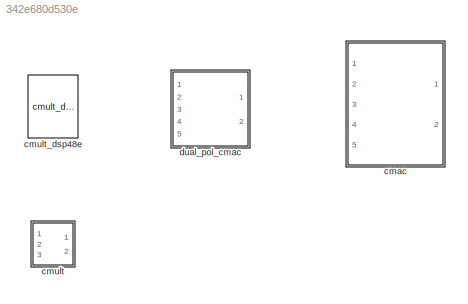
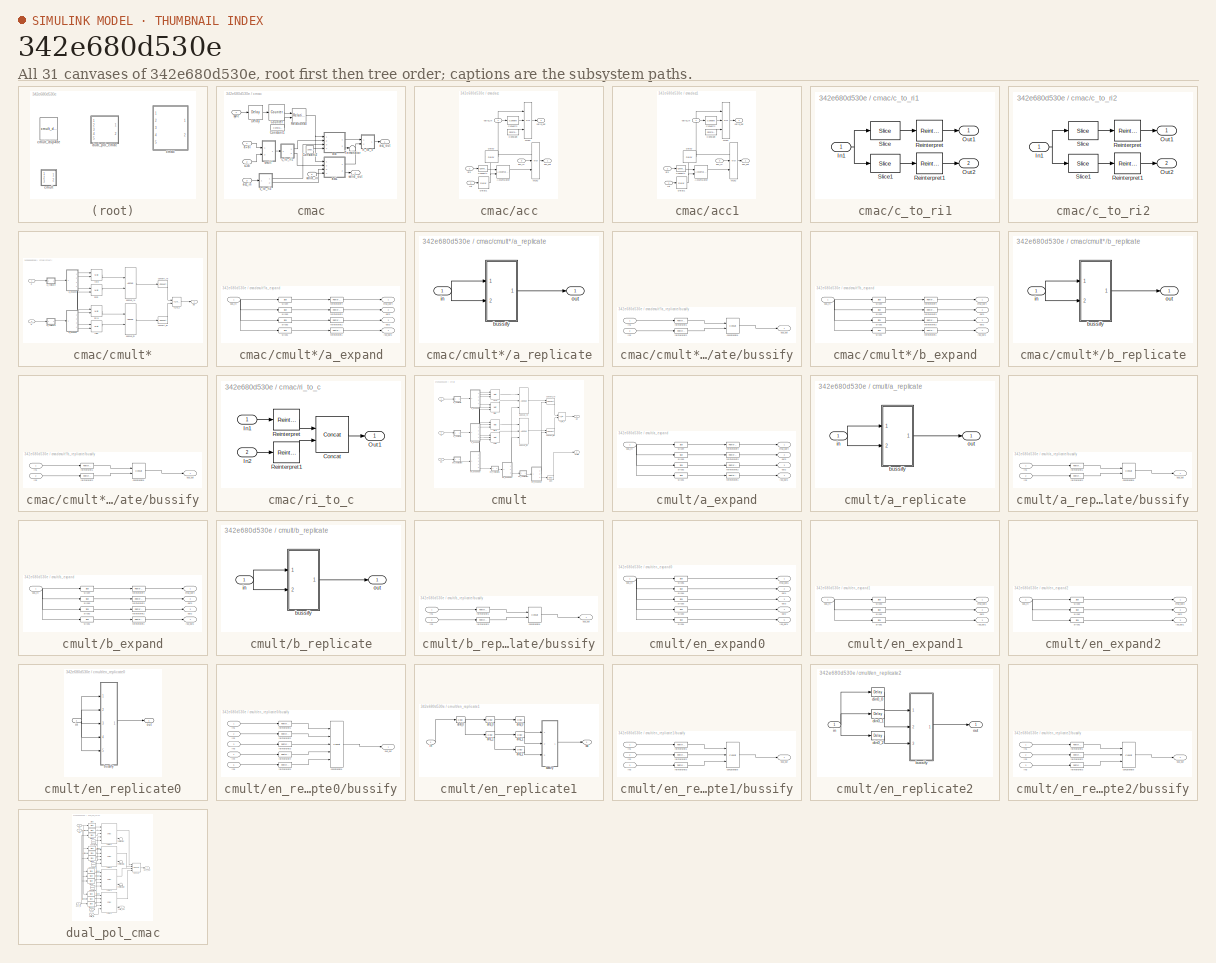
[diagram: thumbnail index - all 31 canvases of the model, root first then tree order]
MODEL slx_342e680d530e
KIND model
BLOCK [SubSystem] cmac
  FunctionWithSeparateData = off
  MaskHideContents = off
  MinAlgLoopOccurrences = off
  Opaque = off
  Ports = [5, 2]
  PropExecContextOutsideSubsystem = off
  RTWSystemCode = Auto
  RequestExecContextInheritance = off
BLOCK [Reference] cmac/Constant1  REF=xbsIndex_r4/Constant
  Ports = [0, 1]
  SourceBlock = xbsIndex_r4/Constant
  SourceType = Xilinx Constant Block Block
  arith_type = Unsigned
  bin_pt = 0
  block_type = constant
  block_version = 9.2.01
  carry = CIN
  const = 0
  dbl_ovrd = off
  dsp48_infoedit = The use of this block for DSP48 instructions is deprecated.  Please use the Opmode block.
  equ = P=C
  exp_width = 8
  explicit_period = off
  frac_width = 24
  gui_display_data_type = Fixed-point
  has_advanced_control = 0
  inp1 = P
  inp2 = PCIN>>17
  n_bits = bit_growth
  opr = +
  opselect = C
  period = 1
  preci_type = Single
  sg_icon_stat = 45,20,0,1,white,blue,0,bf4ddd8b,right,,[ ],[ ]
  sg_mask_display = fprintf('','COMMENT: begin icon graphics');\npatch([0 45 45 0 0 ],[0 0 20 20 0 ],[0.77 0.82 0.91 ]);\nplot([0 45 45 0 0 ],[0 0 20 20 0 ]);\npatch([17.55 20.44 22.44 24.44 26.44 22.44 19.55 17.55 ],[12.22 12.22 14.22 12.22 14.22 14.22 14.22 12.22 ],[1 1 1 ]);\npatch([19.55 22.44 20.44 17.55 19.55 ],[10.22 10.22 12.22 12.22 10.22 ],[0.931 0.946 0.973 ]);\npatch([17.55 20.44 22.44 19.55 17.55 ],[8.22 8.22...<+305ch>
  sggui_pos = -1,-1,-1,-1
BLOCK [Reference] cmac/Constant2  REF=xbsIndex_r4/Constant
  Ports = [0, 1]
  SourceBlock = xbsIndex_r4/Constant
  SourceType = Xilinx Constant Block Block
  arith_type = Unsigned
  bin_pt = 0
  block_type = constant
  block_version = 9.2.01
  carry = CIN
  const = 0
  dbl_ovrd = off
  dsp48_infoedit = The use of this block for DSP48 instructions is deprecated.  Please use the Opmode block.
  equ = P=C
  exp_width = 8
  explicit_period = off
  frac_width = 24
  gui_display_data_type = Fixed-point
  has_advanced_control = 0
  inp1 = P
  inp2 = PCIN>>17
  n_bits = 1
  opr = +
  opselect = C
  period = 1
  preci_type = Single
  sg_icon_stat = 25,24,0,1,white,blue,0,bf4ddd8b,right,,[ ],[ ]
  sg_mask_display = fprintf('','COMMENT: begin icon graphics');\npatch([0 25 25 0 0 ],[0 0 24 24 0 ],[0.77 0.82 0.91 ]);\nplot([0 25 25 0 0 ],[0 0 24 24 0 ]);\npatch([5.325 9.66 12.66 15.66 18.66 12.66 8.325 5.325 ],[15.33 15.33 18.33 15.33 18.33 18.33 18.33 15.33 ],[1 1 1 ]);\npatch([8.325 12.66 9.66 5.325 8.325 ],[12.33 12.33 15.33 15.33 12.33 ],[0.931 0.946 0.973 ]);\npatch([5.325 9.66 12.66 8.325 5.325 ],[9.33 9.33 12...<+301ch>  <repeated x4 — deduplicated; at blocks: Constant2, Constant1, Constant4>
  sggui_pos = 1700,223,378,476
BLOCK [Reference] cmac/Counter  REF=xbsIndex_r4/Counter
  Ports = [1, 1]
  SourceBlock = xbsIndex_r4/Counter
  SourceType = Xilinx Counter Block
  arith_type = Unsigned
  bin_pt = 0
  block_type = counter
  block_version = 9.2.01
  cnt_by_val = 1
  cnt_to = acc_len - 1
  cnt_type = Count Limited
  dbl_ovrd = off
  en = off
  explicit_period = off
  has_advanced_control = 0
  implementation = Fabric
  infoedit = Hardware notes: Free running counters are the least expensive in hardware.  A count limited counter is implemented by combining a counter with a comparator.
  load_pin = off
  n_bits = bit_growth
  operation = Up
  period = 1
  rst = on
  sg_icon_stat = 50,52,1,1,white,blue,0,53dad701,right,,[ ],[ ]
  sg_mask_display = fprintf('','COMMENT: begin icon graphics');\npatch([0 50 50 0 0 ],[0 0 52 52 0 ],[0.77 0.82 0.91 ]);\nplot([0 50 50 0 0 ],[0 0 52 52 0 ]);\npatch([9.425 19.54 26.54 33.54 40.54 26.54 16.425 9.425 ],[33.77 33.77 40.77 33.77 40.77 40.77 40.77 33.77 ],[1 1 1 ]);\npatch([16.425 26.54 19.54 9.425 16.425 ],[26.77 26.77 33.77 33.77 26.77 ],[0.931 0.946 0.973 ]);\npatch([9.425 19.54 26.54 16.425 9.425 ],[19.77...<+395ch>
  sggui_pos = 1700,223,451,768
  start_count = 0
  use_behavioral_HDL = off
  use_rpm = on
  xl_area = [0, 0, 0, 0, 0, 0, 0]
  xl_use_area = off
BLOCK [Reference] cmac/Delay  REF=xbsIndex_r4/Delay
  Ports = [1, 1]
  SourceBlock = xbsIndex_r4/Delay
  SourceType = Xilinx Delay Block
  block_type = delay
  block_version = 9.2.01
  dbl_ovrd = off
  en = off
  has_advanced_control = 0
  infoedit = Hardware notes: A delay line is a chain, each link of which is an SRL16 followed by a flip-flop.
  infoeditControl = Selection of Reset will increase slice count due to use of real FFs and instead of SRLs
  latency = add_latency + mult_latency - 1
  reg_retiming = on
  rst = off
  sg_icon_stat = 45,46,1,1,white,blue,0,07b98262,right,,[ ],[ ]
  sg_mask_display = fprintf('','COMMENT: begin icon graphics');\npatch([0 45 45 0 0 ],[0 0 46 46 0 ],[0.77 0.82 0.91 ]);\nplot([0 45 45 0 0 ],[0 0 46 46 0 ]);\npatch([8.65 17.32 23.32 29.32 35.32 23.32 14.65 8.65 ],[29.66 29.66 35.66 29.66 35.66 35.66 35.66 29.66 ],[1 1 1 ]);\npatch([14.65 23.32 17.32 8.65 14.65 ],[23.66 23.66 29.66 29.66 23.66 ],[0.931 0.946 0.973 ]);\npatch([8.65 17.32 23.32 14.65 8.65 ],[17.66 17.66 23...<+314ch>
  sggui_pos = 1896,900,451,404
  xl_area = [0, 0, 0, 0, 0, 0, 0]
  xl_use_area = off
BLOCK [Reference] cmac/Relational  REF=xbsIndex_r4/Relational
  Ports = [2, 1]
  SourceBlock = xbsIndex_r4/Relational
  SourceType = Xilinx Arithmetic Relational Operator Block
  block_type = relational
  block_version = 9.2.01
  dbl_ovrd = off
  en = off
  has_advanced_control = 0
  latency = 1
  mode = a=b
  sg_icon_stat = 45,44,2,1,white,blue,0,3618233f,right,,[ ],[ ]
  sg_mask_display = fprintf('','COMMENT: begin icon graphics');\npatch([0 45 45 0 0 ],[0 0 44 44 0 ],[0.77 0.82 0.91 ]);\nplot([0 45 45 0 0 ],[0 0 44 44 0 ]);\npatch([8.65 17.32 23.32 29.32 35.32 23.32 14.65 8.65 ],[28.66 28.66 34.66 28.66 34.66 34.66 34.66 28.66 ],[1 1 1 ]);\npatch([14.65 23.32 17.32 8.65 14.65 ],[22.66 22.66 28.66 28.66 22.66 ],[0.931 0.946 0.973 ]);\npatch([8.65 17.32 23.32 14.65 8.65 ],[16.66 16.66 22...<+499ch>
  sggui_pos = 1730,253,451,210
  xl_area = [0, 0, 0, 0, 0, 0, 0]
  xl_use_area = off
BLOCK [Terminator] cmac/Terminator
BLOCK [Inport] cmac/a+bi
  IconDisplay = Port number
BLOCK [SubSystem] cmac/acc
  FunctionWithSeparateData = off
  MaskHideContents = off
  MinAlgLoopOccurrences = off
  Opaque = off
  Ports = [4, 2]
  PropExecContextOutsideSubsystem = off
  RTWSystemCode = Auto
  RequestExecContextInheritance = off
BLOCK [Reference] cmac/acc/Accumulator  REF=xbsIndex_r4/Accumulator
  Ports = [2, 1]
  SourceBlock = xbsIndex_r4/Accumulator
  SourceType = Xilinx Accumulator Block
  block_type = accum
  block_version = 9.2.01
  dbl_ovrd = off
  en = off
  has_advanced_control = 0
  hasbypass = on
  implementation = Fabric
  infoedit = Adder or subtractor-based accumulator.   Output type and binary point position match the input.<P><P>Hardware notes: When "Reinitialize with input 'b' on reset" is selected, the accumulator is forced to run at the system rate even if the input 'b' is running at a slower rate.
  infoeditControl = reset for floating point data type must be asserted for a minimum of 2 cycles
  latency = 0
  lsb = -100
  msb = 100
  msb_inp = 100
  n_bits = n_bits_out
  operation = Add
  overflow = Wrap
  rst = on
  scale = 1
  sg_icon_stat = 50,49,2,1,white,blue,0,6949434e,right,,[ ],[ ]
  sg_mask_display = fprintf('','COMMENT: begin icon graphics');\npatch([0 50 50 0 0 ],[0 0 49 49 0 ],[0.77 0.82 0.91 ]);\nplot([0 50 50 0 0 ],[0 0 49 49 0 ]);\npatch([9.425 19.54 26.54 33.54 40.54 26.54 16.425 9.425 ],[31.77 31.77 38.77 31.77 38.77 38.77 38.77 31.77 ],[1 1 1 ]);\npatch([16.425 26.54 19.54 9.425 16.425 ],[24.77 24.77 31.77 31.77 24.77 ],[0.931 0.946 0.973 ]);\npatch([9.425 19.54 26.54 16.425 9.425 ],[17.77...<+427ch>
  sggui_pos = 1700,223,451,702
  use_behavioral_HDL = on
  xl_area = [0, 0, 0, 0, 0, 0, 0]
  xl_use_area = off
BLOCK [Reference] cmac/acc/Constant  REF=xbsIndex_r4/Constant
  Ports = [0, 1]
  SourceBlock = xbsIndex_r4/Constant
  SourceType = Xilinx Constant Block Block
  arith_type = Boolean
  bin_pt = 0
  block_type = constant
  block_version = 9.2.01
  carry = CIN
  const = 1
  dbl_ovrd = off
  dsp48_infoedit = The use of this block for DSP48 instructions is deprecated.  Please use the Opmode block.
  equ = P=C
  exp_width = 8
  explicit_period = on
  frac_width = 24
  gui_display_data_type = Fixed-point
  has_advanced_control = 0
  inp1 = P
  inp2 = PCIN>>17
  n_bits = 1
  opr = +
  opselect = C
  period = 1
  preci_type = Single
  sg_icon_stat = 45,22,0,1,white,blue,0,1c72b5be,right,,[ ],[ ]
  sg_mask_display = fprintf('','COMMENT: begin icon graphics');\npatch([0 45 45 0 0 ],[0 0 22 22 0 ],[0.77 0.82 0.91 ]);\nplot([0 45 45 0 0 ],[0 0 22 22 0 ]);\npatch([15.325 19.66 22.66 25.66 28.66 22.66 18.325 15.325 ],[14.33 14.33 17.33 14.33 17.33 17.33 17.33 14.33 ],[1 1 1 ]);\npatch([18.325 22.66 19.66 15.325 18.325 ],[11.33 11.33 14.33 14.33 11.33 ],[0.931 0.946 0.973 ]);\npatch([15.325 19.66 22.66 18.325 15.325 ],[...<+317ch>
  sggui_pos = 1700,223,378,476
BLOCK [Reference] cmac/acc/Convert1  REF=xbsIndex_r4/Convert
  Ports = [1, 1]
  SourceBlock = xbsIndex_r4/Convert
  SourceType = Xilinx Type Converter Block
  arith_type = Signed  (2's comp)
  bin_pt = bin_pt_out
  block_type = convert
  block_version = 9.2.01
  dbl_ovrd = off
  en = off
  exp_bits = 8
  float_type = Single
  fraction_bits = 24
  gui_display_data_type = Fixed-point
  has_advanced_control = 0
  infoedit = Hardware notes: rounding and saturating require hardware resources; truncating and wrapping do not.
  latency = 0
  n_bits = n_bits_out
  overflow = Wrap
  pipeline = off
  quantization = Truncate
  sg_icon_stat = 35,24,1,1,white,blue,0,edca21da,right,,[ ],[ ]
  sg_mask_display = fprintf('','COMMENT: begin icon graphics');\npatch([0 35 35 0 0 ],[0 0 24 24 0 ],[0.77 0.82 0.91 ]);\nplot([0 35 35 0 0 ],[0 0 24 24 0 ]);\npatch([10.325 14.66 17.66 20.66 23.66 17.66 13.325 10.325 ],[15.33 15.33 18.33 15.33 18.33 18.33 18.33 15.33 ],[1 1 1 ]);\npatch([13.325 17.66 14.66 10.325 13.325 ],[12.33 12.33 15.33 15.33 12.33 ],[0.931 0.946 0.973 ]);\npatch([10.325 14.66 17.66 13.325 10.325 ],[...<+321ch>
  sggui_pos = 1700,223,568,656
  xl_area = [0, 0, 0, 0, 0, 0, 0]
  xl_use_area = off
BLOCK [Reference] cmac/acc/Convert2  REF=xbsIndex_r4/Convert
  Ports = [1, 1]
  SourceBlock = xbsIndex_r4/Convert
  SourceType = Xilinx Type Converter Block
  arith_type = Boolean
  bin_pt = 6
  block_type = convert
  block_version = 9.2.01
  dbl_ovrd = off
  en = off
  exp_bits = 8
  float_type = Single
  fraction_bits = 24
  gui_display_data_type = Fixed-point
  has_advanced_control = 0
  infoedit = Hardware notes: rounding and saturating require hardware resources; truncating and wrapping do not.
  latency = 0
  n_bits = 8
  overflow = Wrap
  pipeline = off
  quantization = Truncate
  sg_icon_stat = 45,30,1,1,white,blue,0,edca21da,right,,[ ],[ ]
  sg_mask_display = fprintf('','COMMENT: begin icon graphics');\npatch([0 45 45 0 0 ],[0 0 30 30 0 ],[0.77 0.82 0.91 ]);\nplot([0 45 45 0 0 ],[0 0 30 30 0 ]);\npatch([13.1 18.88 22.88 26.88 30.88 22.88 17.1 13.1 ],[19.44 19.44 23.44 19.44 23.44 23.44 23.44 19.44 ],[1 1 1 ]);\npatch([17.1 22.88 18.88 13.1 17.1 ],[15.44 15.44 19.44 19.44 15.44 ],[0.931 0.946 0.973 ]);\npatch([13.1 18.88 22.88 17.1 13.1 ],[11.44 11.44 15.44 ...<+303ch>
  sggui_pos = 2778,242,568,656
  xl_area = [0, 0, 0, 0, 0, 0, 0]
  xl_use_area = off
BLOCK [Reference] cmac/acc/Delay  REF=xbsIndex_r4/Delay
  Ports = [1, 1]
  SourceBlock = xbsIndex_r4/Delay
  SourceType = Xilinx Delay Block
  block_type = delay
  block_version = 9.2.01
  dbl_ovrd = off
  en = off
  has_advanced_control = 0
  infoedit = Hardware notes: A delay line is a chain, each link of which is an SRL16 followed by a flip-flop.
  infoeditControl = Selection of Reset will increase slice count due to use of real FFs and instead of SRLs
  latency = 0
  reg_retiming = off
  rst = off
  sg_icon_stat = 50,46,1,1,white,blue,0,24450e6f,right,,[ ],[ ]
  sg_mask_display = fprintf('','COMMENT: begin icon graphics');\npatch([0 50 50 0 0 ],[0 0 46 46 0 ],[0.77 0.82 0.91 ]);\nplot([0 50 50 0 0 ],[0 0 46 46 0 ]);\npatch([11.65 20.32 26.32 32.32 38.32 26.32 17.65 11.65 ],[29.66 29.66 35.66 29.66 35.66 35.66 35.66 29.66 ],[1 1 1 ]);\npatch([17.65 26.32 20.32 11.65 17.65 ],[23.66 23.66 29.66 29.66 23.66 ],[0.931 0.946 0.973 ]);\npatch([11.65 20.32 26.32 17.65 11.65 ],[17.66 17....<+320ch>
  sggui_pos = 1700,223,451,404
  xl_area = [0, 0, 0, 0, 0, 0, 0]
  xl_use_area = off
BLOCK [Reference] cmac/acc/Delay1  REF=xbsIndex_r4/Delay
  Ports = [1, 1]
  SourceBlock = xbsIndex_r4/Delay
  SourceType = Xilinx Delay Block
  block_type = delay
  block_version = 9.2.01
  dbl_ovrd = off
  en = off
  has_advanced_control = 0
  infoedit = Hardware notes: A delay line is a chain, each link of which is an SRL16 followed by a flip-flop.
  infoeditControl = Selection of Reset will increase slice count due to use of real FFs and instead of SRLs
  latency = 0
  reg_retiming = off
  rst = off
  sg_icon_stat = 40,46,1,1,white,blue,0,24450e6f,right,,[ ],[ ]
  sg_mask_display = fprintf('','COMMENT: begin icon graphics');\npatch([0 40 40 0 0 ],[0 0 46 46 0 ],[0.77 0.82 0.91 ]);\nplot([0 40 40 0 0 ],[0 0 46 46 0 ]);\npatch([8.875 16.1 21.1 26.1 31.1 21.1 13.875 8.875 ],[28.55 28.55 33.55 28.55 33.55 33.55 33.55 28.55 ],[1 1 1 ]);\npatch([13.875 21.1 16.1 8.875 13.875 ],[23.55 23.55 28.55 28.55 23.55 ],[0.931 0.946 0.973 ]);\npatch([8.875 16.1 21.1 13.875 8.875 ],[18.55 18.55 23...<+313ch>
  sggui_pos = -1,-1,-1,-1
  xl_area = [0, 0, 0, 0, 0, 0, 0]
  xl_use_area = off
BLOCK [Reference] cmac/acc/Mux2  REF=xbsIndex_r4/Mux
  Ports = [3, 1]
  SourceBlock = xbsIndex_r4/Mux
  SourceType = Xilinx Bus Multiplexer Block
  arith_type = Signed  (2's comp)
  bin_pt = 0
  block_type = mux
  block_version = 9.2.01
  dbl_ovrd = off
  en = off
  has_advanced_control = 0
  inputs = 2
  latency = 2
  n_bits = 0
  overflow = Wrap
  precision = Full
  quantization = Round  (unbiased: +/- Inf)
  sg_icon_stat = 30,140,3,1,white,blue,3,7e8e053c,right,,[ ],[ ]
  sg_mask_display = fprintf('','COMMENT: begin icon graphics');\npatch([0 30 30 0 0 ],[0 20 120 140 0 ],[0.77 0.82 0.91 ]);\nplot([0 30 30 0 0 ],[0 20 120 140 0 ]);\npatch([6.1 11.88 15.88 19.88 23.88 15.88 10.1 6.1 ],[74.44 74.44 78.44 74.44 78.44 78.44 78.44 74.44 ],[1 1 1 ]);\npatch([10.1 15.88 11.88 6.1 10.1 ],[70.44 70.44 74.44 74.44 70.44 ],[0.931 0.946 0.973 ]);\npatch([6.1 11.88 15.88 10.1 6.1 ],[66.44 66.44 70.44...<+444ch>  <repeated x4 — deduplicated; at blocks: Mux2, Mux3>
  sggui_pos = -1,-1,-1,-1
  xl_area = [0, 0, 0, 0, 0, 0, 0]
  xl_use_area = off
BLOCK [Reference] cmac/acc/Mux3  REF=xbsIndex_r4/Mux
  Ports = [3, 1]
  SourceBlock = xbsIndex_r4/Mux
  SourceType = Xilinx Bus Multiplexer Block
  arith_type = Signed  (2's comp)
  bin_pt = 0
  block_type = mux
  block_version = 9.2.01
  dbl_ovrd = off
  en = off
  has_advanced_control = 0
  inputs = 2
  latency = 2
  n_bits = 0
  overflow = Wrap
  precision = Full
  quantization = Truncate
  sg_icon_stat = 30,140,3,1,white,blue,3,7e8e053c,right,,[ ],[ ]
  sggui_pos = -1,-1,-1,-1
  xl_area = [0, 0, 0, 0, 0, 0, 0]
  xl_use_area = off
BLOCK [Inport] cmac/acc/acc_in
  IconDisplay = Port number
  Port = 3
BLOCK [Outport] cmac/acc/acc_out
  IconDisplay = Port number
BLOCK [Inport] cmac/acc/din
  IconDisplay = Port number
  Port = 2
BLOCK [Inport] cmac/acc/rst
  IconDisplay = Port number
BLOCK [Inport] cmac/acc/valid_in
  IconDisplay = Port number
  Port = 4
BLOCK [Outport] cmac/acc/valid_out
  IconDisplay = Port number
  Port = 2
BLOCK [SubSystem] cmac/acc1
  FunctionWithSeparateData = off
  MaskHideContents = off
  MinAlgLoopOccurrences = off
  Opaque = off
  Ports = [4, 2]
  PropExecContextOutsideSubsystem = off
  RTWSystemCode = Auto
  RequestExecContextInheritance = off
BLOCK [Reference] cmac/acc1/Accumulator  REF=xbsIndex_r4/Accumulator
  Ports = [2, 1]
  SourceBlock = xbsIndex_r4/Accumulator
  SourceType = Xilinx Accumulator Block
  block_type = accum
  block_version = 9.2.01
  dbl_ovrd = off
  en = off
  has_advanced_control = 0
  hasbypass = on
  implementation = Fabric
  infoedit = Adder or subtractor-based accumulator.   Output type and binary point position match the input.<P><P>Hardware notes: When "Reinitialize with input 'b' on reset" is selected, the accumulator is forced to run at the system rate even if the input 'b' is running at a slower rate.
  infoeditControl = reset for floating point data type must be asserted for a minimum of 2 cycles
  latency = 0
  lsb = -100
  msb = 100
  msb_inp = 100
  n_bits = n_bits_out
  operation = Add
  overflow = Wrap
  rst = on
  scale = 1
  sg_icon_stat = 50,49,2,1,white,blue,0,6949434e,right,,[ ],[ ]
  sg_mask_display = fprintf('','COMMENT: begin icon graphics');\npatch([0 50 50 0 0 ],[0 0 49 49 0 ],[0.77 0.82 0.91 ]);\nplot([0 50 50 0 0 ],[0 0 49 49 0 ]);\npatch([9.425 19.54 26.54 33.54 40.54 26.54 16.425 9.425 ],[31.77 31.77 38.77 31.77 38.77 38.77 38.77 31.77 ],[1 1 1 ]);\npatch([16.425 26.54 19.54 9.425 16.425 ],[24.77 24.77 31.77 31.77 24.77 ],[0.931 0.946 0.973 ]);\npatch([9.425 19.54 26.54 16.425 9.425 ],[17.77...<+427ch>
  sggui_pos = 1700,223,451,702
  use_behavioral_HDL = on
  xl_area = [0, 0, 0, 0, 0, 0, 0]
  xl_use_area = off
BLOCK [Reference] cmac/acc1/Constant  REF=xbsIndex_r4/Constant
  Ports = [0, 1]
  SourceBlock = xbsIndex_r4/Constant
  SourceType = Xilinx Constant Block Block
  arith_type = Boolean
  bin_pt = 0
  block_type = constant
  block_version = 9.2.01
  carry = CIN
  const = 1
  dbl_ovrd = off
  dsp48_infoedit = The use of this block for DSP48 instructions is deprecated.  Please use the Opmode block.
  equ = P=C
  exp_width = 8
  explicit_period = on
  frac_width = 24
  gui_display_data_type = Fixed-point
  has_advanced_control = 0
  inp1 = P
  inp2 = PCIN>>17
  n_bits = 1
  opr = +
  opselect = C
  period = 1
  preci_type = Single
  sg_icon_stat = 45,22,0,1,white,blue,0,1c72b5be,right,,[ ],[ ]
  sg_mask_display = fprintf('','COMMENT: begin icon graphics');\npatch([0 45 45 0 0 ],[0 0 22 22 0 ],[0.77 0.82 0.91 ]);\nplot([0 45 45 0 0 ],[0 0 22 22 0 ]);\npatch([15.325 19.66 22.66 25.66 28.66 22.66 18.325 15.325 ],[14.33 14.33 17.33 14.33 17.33 17.33 17.33 14.33 ],[1 1 1 ]);\npatch([18.325 22.66 19.66 15.325 18.325 ],[11.33 11.33 14.33 14.33 11.33 ],[0.931 0.946 0.973 ]);\npatch([15.325 19.66 22.66 18.325 15.325 ],[...<+317ch>
  sggui_pos = -1,-1,-1,-1
BLOCK [Reference] cmac/acc1/Convert1  REF=xbsIndex_r4/Convert
  Ports = [1, 1]
  SourceBlock = xbsIndex_r4/Convert
  SourceType = Xilinx Type Converter Block
  arith_type = Signed  (2's comp)
  bin_pt = bin_pt_out
  block_type = convert
  block_version = 9.2.01
  dbl_ovrd = off
  en = off
  exp_bits = 8
  float_type = Single
  fraction_bits = 24
  gui_display_data_type = Fixed-point
  has_advanced_control = 0
  infoedit = Hardware notes: rounding and saturating require hardware resources; truncating and wrapping do not.
  latency = 0
  n_bits = n_bits_out
  overflow = Wrap
  pipeline = off
  quantization = Truncate
  sg_icon_stat = 35,24,1,1,white,blue,0,edca21da,right,,[ ],[ ]
  sg_mask_display = fprintf('','COMMENT: begin icon graphics');\npatch([0 35 35 0 0 ],[0 0 24 24 0 ],[0.77 0.82 0.91 ]);\nplot([0 35 35 0 0 ],[0 0 24 24 0 ]);\npatch([10.325 14.66 17.66 20.66 23.66 17.66 13.325 10.325 ],[15.33 15.33 18.33 15.33 18.33 18.33 18.33 15.33 ],[1 1 1 ]);\npatch([13.325 17.66 14.66 10.325 13.325 ],[12.33 12.33 15.33 15.33 12.33 ],[0.931 0.946 0.973 ]);\npatch([10.325 14.66 17.66 13.325 10.325 ],[...<+321ch>
  sggui_pos = 1700,223,568,656
  xl_area = [0, 0, 0, 0, 0, 0, 0]
  xl_use_area = off
BLOCK [Reference] cmac/acc1/Convert2  REF=xbsIndex_r4/Convert
  Ports = [1, 1]
  SourceBlock = xbsIndex_r4/Convert
  SourceType = Xilinx Type Converter Block
  arith_type = Boolean
  bin_pt = 6
  block_type = convert
  block_version = 9.2.01
  dbl_ovrd = off
  en = off
  exp_bits = 8
  float_type = Single
  fraction_bits = 24
  gui_display_data_type = Fixed-point
  has_advanced_control = 0
  infoedit = Hardware notes: rounding and saturating require hardware resources; truncating and wrapping do not.
  latency = 0
  n_bits = 8
  overflow = Wrap
  pipeline = off
  quantization = Truncate
  sg_icon_stat = 45,30,1,1,white,blue,0,edca21da,right,,[ ],[ ]
  sg_mask_display = fprintf('','COMMENT: begin icon graphics');\npatch([0 45 45 0 0 ],[0 0 30 30 0 ],[0.77 0.82 0.91 ]);\nplot([0 45 45 0 0 ],[0 0 30 30 0 ]);\npatch([13.1 18.88 22.88 26.88 30.88 22.88 17.1 13.1 ],[19.44 19.44 23.44 19.44 23.44 23.44 23.44 19.44 ],[1 1 1 ]);\npatch([17.1 22.88 18.88 13.1 17.1 ],[15.44 15.44 19.44 19.44 15.44 ],[0.931 0.946 0.973 ]);\npatch([13.1 18.88 22.88 17.1 13.1 ],[11.44 11.44 15.44 ...<+303ch>
  sggui_pos = -1,-1,-1,-1
  xl_area = [0, 0, 0, 0, 0, 0, 0]
  xl_use_area = off
BLOCK [Reference] cmac/acc1/Delay  REF=xbsIndex_r4/Delay
  Ports = [1, 1]
  SourceBlock = xbsIndex_r4/Delay
  SourceType = Xilinx Delay Block
  block_type = delay
  block_version = 9.2.01
  dbl_ovrd = off
  en = off
  has_advanced_control = 0
  infoedit = Hardware notes: A delay line is a chain, each link of which is an SRL16 followed by a flip-flop.
  infoeditControl = Selection of Reset will increase slice count due to use of real FFs and instead of SRLs
  latency = 0
  reg_retiming = off
  rst = off
  sg_icon_stat = 50,46,1,1,white,blue,0,24450e6f,right,,[ ],[ ]
  sg_mask_display = fprintf('','COMMENT: begin icon graphics');\npatch([0 50 50 0 0 ],[0 0 46 46 0 ],[0.77 0.82 0.91 ]);\nplot([0 50 50 0 0 ],[0 0 46 46 0 ]);\npatch([11.65 20.32 26.32 32.32 38.32 26.32 17.65 11.65 ],[29.66 29.66 35.66 29.66 35.66 35.66 35.66 29.66 ],[1 1 1 ]);\npatch([17.65 26.32 20.32 11.65 17.65 ],[23.66 23.66 29.66 29.66 23.66 ],[0.931 0.946 0.973 ]);\npatch([11.65 20.32 26.32 17.65 11.65 ],[17.66 17....<+320ch>
  sggui_pos = -1,-1,-1,-1
  xl_area = [0, 0, 0, 0, 0, 0, 0]
  xl_use_area = off
BLOCK [Reference] cmac/acc1/Delay1  REF=xbsIndex_r4/Delay
  Ports = [1, 1]
  SourceBlock = xbsIndex_r4/Delay
  SourceType = Xilinx Delay Block
  block_type = delay
  block_version = 9.2.01
  dbl_ovrd = off
  en = off
  has_advanced_control = 0
  infoedit = Hardware notes: A delay line is a chain, each link of which is an SRL16 followed by a flip-flop.
  infoeditControl = Selection of Reset will increase slice count due to use of real FFs and instead of SRLs
  latency = 0
  reg_retiming = off
  rst = off
  sg_icon_stat = 40,46,1,1,white,blue,0,24450e6f,right,,[ ],[ ]
  sg_mask_display = fprintf('','COMMENT: begin icon graphics');\npatch([0 40 40 0 0 ],[0 0 46 46 0 ],[0.77 0.82 0.91 ]);\nplot([0 40 40 0 0 ],[0 0 46 46 0 ]);\npatch([8.875 16.1 21.1 26.1 31.1 21.1 13.875 8.875 ],[28.55 28.55 33.55 28.55 33.55 33.55 33.55 28.55 ],[1 1 1 ]);\npatch([13.875 21.1 16.1 8.875 13.875 ],[23.55 23.55 28.55 28.55 23.55 ],[0.931 0.946 0.973 ]);\npatch([8.875 16.1 21.1 13.875 8.875 ],[18.55 18.55 23...<+313ch>
  sggui_pos = -1,-1,-1,-1
  xl_area = [0, 0, 0, 0, 0, 0, 0]
  xl_use_area = off
BLOCK [Reference] cmac/acc1/Mux2  REF=xbsIndex_r4/Mux
  Ports = [3, 1]
  SourceBlock = xbsIndex_r4/Mux
  SourceType = Xilinx Bus Multiplexer Block
  arith_type = Signed  (2's comp)
  bin_pt = 0
  block_type = mux
  block_version = 9.2.01
  dbl_ovrd = off
  en = off
  has_advanced_control = 0
  inputs = 2
  latency = 2
  n_bits = 0
  overflow = Wrap
  precision = Full
  quantization = Round  (unbiased: +/- Inf)
  sg_icon_stat = 30,140,3,1,white,blue,3,7e8e053c,right,,[ ],[ ]
  sggui_pos = 1700,223,451,368
  xl_area = [0, 0, 0, 0, 0, 0, 0]
  xl_use_area = off
BLOCK [Reference] cmac/acc1/Mux3  REF=xbsIndex_r4/Mux
  Ports = [3, 1]
  SourceBlock = xbsIndex_r4/Mux
  SourceType = Xilinx Bus Multiplexer Block
  arith_type = Signed  (2's comp)
  bin_pt = 0
  block_type = mux
  block_version = 9.2.01
  dbl_ovrd = off
  en = off
  has_advanced_control = 0
  inputs = 2
  latency = 2
  n_bits = 0
  overflow = Wrap
  precision = Full
  quantization = Truncate
  sg_icon_stat = 30,140,3,1,white,blue,3,7e8e053c,right,,[ ],[ ]
  sggui_pos = -1,-1,-1,-1
  xl_area = [0, 0, 0, 0, 0, 0, 0]
  xl_use_area = off
BLOCK [Inport] cmac/acc1/acc_in
  IconDisplay = Port number
  Port = 3
BLOCK [Outport] cmac/acc1/acc_out
  IconDisplay = Port number
BLOCK [Inport] cmac/acc1/din
  IconDisplay = Port number
  Port = 2
BLOCK [Inport] cmac/acc1/rst
  IconDisplay = Port number
BLOCK [Inport] cmac/acc1/valid_in
  IconDisplay = Port number
  Port = 4
BLOCK [Outport] cmac/acc1/valid_out
  IconDisplay = Port number
  Port = 2
BLOCK [Inport] cmac/acc_in
  IconDisplay = Port number
  Port = 3
BLOCK [Outport] cmac/acc_out
  IconDisplay = Port number
BLOCK [Inport] cmac/c+di
  IconDisplay = Port number
  Port = 2
BLOCK [SubSystem] cmac/c_to_ri1
  FunctionWithSeparateData = off
  MaskHideContents = off
  MinAlgLoopOccurrences = off
  Opaque = off
  Ports = [1, 2]
  PropExecContextOutsideSubsystem = off
  RTWSystemCode = Auto
  RequestExecContextInheritance = off
BLOCK [Inport] cmac/c_to_ri1/In1
  IconDisplay = Port number
BLOCK [Outport] cmac/c_to_ri1/Out1
  IconDisplay = Port number
BLOCK [Outport] cmac/c_to_ri1/Out2
  IconDisplay = Port number
  Port = 2
BLOCK [Reference] cmac/c_to_ri1/Reinterpret  REF=xbsIndex_r4/Reinterpret
  Ports = [1, 1]
  SourceBlock = xbsIndex_r4/Reinterpret
  SourceType = Xilinx Type Reinterpreter Block
  arith_type = Signed  (2's comp)
  bin_pt = bin_pt_out
  block_type = reinterpret
  block_version = 9.2.01
  force_arith_type = on
  force_bin_pt = on
  has_advanced_control = 0
  infoedit = Changes signal type without altering the binary representation.   You can change the signal between signed and unsigned, and relocate the binary point.<br><br>Hardware notes: In hardware this block costs nothing.<br><br>Example:  Suppose the input is 6 bits wide, signed, with 2 fractional bits, and the output is forced to unsigned with 0 fractional bits.  Then an input of -2.0 (1110.00 in binary 2...<+58ch>  <repeated x23 — deduplicated; at blocks: Reinterpret, Reinterpret1, reinterpret1, reinterpret2, reinterpret3, reinterpret4, reinterpret5>
  sg_icon_stat = 40,32,1,1,white,blue,0,6b04d0b0,right,,[ ],[ ]
  sg_mask_display = fprintf('','COMMENT: begin icon graphics');\npatch([0 40 40 0 0 ],[0 0 32 32 0 ],[0.77 0.82 0.91 ]);\nplot([0 40 40 0 0 ],[0 0 32 32 0 ]);\npatch([11.1 16.88 20.88 24.88 28.88 20.88 15.1 11.1 ],[20.44 20.44 24.44 20.44 24.44 24.44 24.44 20.44 ],[1 1 1 ]);\npatch([15.1 20.88 16.88 11.1 15.1 ],[16.44 16.44 20.44 20.44 16.44 ],[0.931 0.946 0.973 ]);\npatch([11.1 16.88 20.88 15.1 11.1 ],[12.44 12.44 16.44 ...<+294ch>  <repeated x6 — deduplicated; at blocks: Reinterpret, Reinterpret1>
  sggui_pos = 1700,223,400,381
BLOCK [Reference] cmac/c_to_ri1/Reinterpret1  REF=xbsIndex_r4/Reinterpret
  Ports = [1, 1]
  SourceBlock = xbsIndex_r4/Reinterpret
  SourceType = Xilinx Type Reinterpreter Block
  arith_type = Signed  (2's comp)
  bin_pt = bin_pt_out
  block_type = reinterpret
  block_version = 9.2.01
  force_arith_type = on
  force_bin_pt = on
  has_advanced_control = 0
  sg_icon_stat = 40,32,1,1,white,blue,0,6b04d0b0,right,,[ ],[ ]
  sggui_pos = 1700,223,400,381
BLOCK [Reference] cmac/c_to_ri1/Slice  REF=xbsIndex_r4/Slice
  Ports = [1, 1]
  SourceBlock = xbsIndex_r4/Slice
  SourceType = Xilinx Bit Slice Extractor Block
  base0 = LSB of Input
  base1 = MSB of Input
  bit0 = 0
  bit1 = 0
  block_type = slice
  block_version = 9.2.01
  boolean_output = off
  dbl_ovrd = off
  has_advanced_control = 0
  infoedit = Extracts a given range of bits from each input sample and presents it at the output.  The output type is ordinarily unsigned with binary point at zero, but can be Boolean when the slice is one bit wide.<P><P>Hardware notes: In hardware this block costs nothing.  <repeated x14 — deduplicated; at blocks: Slice, Slice1, Slice11, Slice2, Slice3, Slice4, Slice5, Slice6, Slice7, Slice8>
  mode = Upper Bit Location + Width
  nbits = n_bits_out
  sg_icon_stat = 45,28,1,1,white,blue,0,1fd851a7,right,,[ ],[ ]
  sg_mask_display = fprintf('','COMMENT: begin icon graphics');\npatch([0 45 45 0 0 ],[0 0 28 28 0 ],[0.77 0.82 0.91 ]);\nplot([0 45 45 0 0 ],[0 0 28 28 0 ]);\npatch([13.1 18.88 22.88 26.88 30.88 22.88 17.1 13.1 ],[18.44 18.44 22.44 18.44 22.44 22.44 22.44 18.44 ],[1 1 1 ]);\npatch([17.1 22.88 18.88 13.1 17.1 ],[14.44 14.44 18.44 18.44 14.44 ],[0.931 0.946 0.973 ]);\npatch([13.1 18.88 22.88 17.1 13.1 ],[10.44 10.44 14.44 ...<+304ch>  <repeated x16 — deduplicated; at blocks: Slice, Slice1, Slice10, Slice11, Slice2, Slice3, Slice4, Slice5, Slice6, Slice7, Slice8, Slice9>
  sggui_pos = 1700,223,594,505
BLOCK [Reference] cmac/c_to_ri1/Slice1  REF=xbsIndex_r4/Slice
  Ports = [1, 1]
  SourceBlock = xbsIndex_r4/Slice
  SourceType = Xilinx Bit Slice Extractor Block
  base0 = LSB of Input
  base1 = MSB of Input
  bit0 = 0
  bit1 = 0
  block_type = slice
  block_version = 9.2.01
  boolean_output = off
  dbl_ovrd = off
  has_advanced_control = 0
  mode = Lower Bit Location + Width
  nbits = n_bits_out
  sg_icon_stat = 45,28,1,1,white,blue,0,1fd851a7,right,,[ ],[ ]
  sggui_pos = 1700,223,594,505
BLOCK [SubSystem] cmac/c_to_ri2
  FunctionWithSeparateData = off
  MaskHideContents = off
  MinAlgLoopOccurrences = off
  Opaque = off
  Ports = [1, 2]
  PropExecContextOutsideSubsystem = off
  RTWSystemCode = Auto
  RequestExecContextInheritance = off
BLOCK [Inport] cmac/c_to_ri2/In1
  IconDisplay = Port number
BLOCK [Outport] cmac/c_to_ri2/Out1
  IconDisplay = Port number
BLOCK [Outport] cmac/c_to_ri2/Out2
  IconDisplay = Port number
  Port = 2
BLOCK [Reference] cmac/c_to_ri2/Reinterpret  REF=xbsIndex_r4/Reinterpret
  Ports = [1, 1]
  SourceBlock = xbsIndex_r4/Reinterpret
  SourceType = Xilinx Type Reinterpreter Block
  arith_type = Signed  (2's comp)
  bin_pt = n_bits_out - bit_growth - 3
  block_type = reinterpret
  block_version = 9.2.01
  force_arith_type = on
  force_bin_pt = on
  has_advanced_control = 0
  infoedit = Changes signal type without altering the binary representation.   You can changed the signal between signed and unsigned, and relocate the binary point.<P><P>Hardware notes: In hardware this block costs nothing.<P><P>Example:  Suppose the input is 6 bits wide, signed, with 2 fractional bits, and the output is forced to unsigned with 0 fractional bits.  Then an input of -2.0 (1110.00 in binary 2's ...<+55ch>  <repeated x4 — deduplicated; at blocks: Reinterpret, Reinterpret1>
  sg_icon_stat = 40,32,1,1,white,blue,0,6b04d0b0,right,,[ ],[ ]
  sggui_pos = -1,-1,-1,-1
BLOCK [Reference] cmac/c_to_ri2/Reinterpret1  REF=xbsIndex_r4/Reinterpret
  Ports = [1, 1]
  SourceBlock = xbsIndex_r4/Reinterpret
  SourceType = Xilinx Type Reinterpreter Block
  arith_type = Signed  (2's comp)
  bin_pt = n_bits_out - bit_growth - 3
  block_type = reinterpret
  block_version = 9.2.01
  force_arith_type = on
  force_bin_pt = on
  has_advanced_control = 0
  sg_icon_stat = 40,32,1,1,white,blue,0,6b04d0b0,right,,[ ],[ ]
  sggui_pos = -1,-1,-1,-1
BLOCK [Reference] cmac/c_to_ri2/Slice  REF=xbsIndex_r4/Slice
  Ports = [1, 1]
  SourceBlock = xbsIndex_r4/Slice
  SourceType = Xilinx Bit Slice Extractor Block
  base0 = LSB of Input
  base1 = MSB of Input
  bit0 = 0
  bit1 = 0
  block_type = slice
  block_version = 9.2.01
  boolean_output = off
  dbl_ovrd = off
  has_advanced_control = 0
  mode = Upper Bit Location + Width
  nbits = n_bits_out
  sg_icon_stat = 45,28,1,1,white,blue,0,1fd851a7,right,,[ ],[ ]
  sggui_pos = -1,-1,-1,-1
BLOCK [Reference] cmac/c_to_ri2/Slice1  REF=xbsIndex_r4/Slice
  Ports = [1, 1]
  SourceBlock = xbsIndex_r4/Slice
  SourceType = Xilinx Bit Slice Extractor Block
  base0 = LSB of Input
  base1 = MSB of Input
  bit0 = 0
  bit1 = 0
  block_type = slice
  block_version = 9.2.01
  boolean_output = off
  dbl_ovrd = off
  has_advanced_control = 0
  mode = Lower Bit Location + Width
  nbits = n_bits_out
  sg_icon_stat = 45,28,1,1,white,blue,0,1fd851a7,right,,[ ],[ ]
  sggui_pos = -1,-1,-1,-1
BLOCK [SubSystem] cmac/cmult*
  AncestorBlock = casper_library_multipliers/cmult
  AttributesFormatString = 8_7 * 8_7 ==> 22_14\nTruncate, Wrap\nLatency=0
  FunctionWithSeparateData = off
  MaskHideContents = off
  MinAlgLoopOccurrences = off
  Opaque = off
  Ports = [2, 1]
  PropExecContextOutsideSubsystem = off
  RTWSystemCode = Auto
  RequestExecContextInheritance = off
  UserDataPersistent = on
BLOCK [Inport] cmac/cmult*/a
  IconDisplay = Port number
BLOCK [SubSystem] cmac/cmult*/a_expand
  AncestorBlock = casper_library_flow_control/bus_expand
  AttributesFormatString = 4 outputs
  FunctionWithSeparateData = off
  MaskHideContents = off
  MinAlgLoopOccurrences = off
  Opaque = off
  Ports = [1, 4]
  PropExecContextOutsideSubsystem = off
  RTWSystemCode = Auto
  RequestExecContextInheritance = off
  UserDataPersistent = on
BLOCK [Inport] cmac/cmult*/a_expand/bus_in
  IconDisplay = Port number
BLOCK [Outport] cmac/cmult*/a_expand/lsb_out1
  IconDisplay = Port number
  Port = 4
BLOCK [Outport] cmac/cmult*/a_expand/msb_out4
  IconDisplay = Port number
BLOCK [Outport] cmac/cmult*/a_expand/out2
  IconDisplay = Port number
  Port = 3
BLOCK [Outport] cmac/cmult*/a_expand/out3
  IconDisplay = Port number
  Port = 2
BLOCK [Reference] cmac/cmult*/a_expand/reinterpret1  REF=xbsIndex_r4/Reinterpret
  Ports = [1, 1]
  SourceBlock = xbsIndex_r4/Reinterpret
  SourceType = Xilinx Type Reinterpreter Block
  arith_type = Signed  (2's comp)
  bin_pt = 7
  block_type = reinterpret
  force_arith_type = on
  force_bin_pt = on
  has_advanced_control = 0
  sg_icon_stat = 50,20,1,1,white,blue,0,6b04d0b0,right,,[ ],[ ]
  sg_mask_display = fprintf('','COMMENT: begin icon graphics');\npatch([0 50 50 0 0 ],[0 0 20 20 0 ],[0.77 0.82 0.91 ]);\nplot([0 50 50 0 0 ],[0 0 20 20 0 ]);\npatch([20.55 23.44 25.44 27.44 29.44 25.44 22.55 20.55 ],[12.22 12.22 14.22 12.22 14.22 14.22 14.22 12.22 ],[1 1 1 ]);\npatch([22.55 25.44 23.44 20.55 22.55 ],[10.22 10.22 12.22 12.22 10.22 ],[0.931 0.946 0.973 ]);\npatch([20.55 23.44 25.44 22.55 20.55 ],[8.22 8.22...<+300ch>  <repeated x35 — deduplicated; at blocks: reinterpret1, reinterpret2, reinterpret3, reinterpret4, reinterpret5>
  sggui_pos = -1,-1,-1,-1
BLOCK [Reference] cmac/cmult*/a_expand/reinterpret2  REF=xbsIndex_r4/Reinterpret
  Ports = [1, 1]
  SourceBlock = xbsIndex_r4/Reinterpret
  SourceType = Xilinx Type Reinterpreter Block
  arith_type = Signed  (2's comp)
  bin_pt = 7
  block_type = reinterpret
  force_arith_type = on
  force_bin_pt = on
  has_advanced_control = 0
  sg_icon_stat = 50,20,1,1,white,blue,0,6b04d0b0,right,,[ ],[ ]
  sggui_pos = -1,-1,-1,-1
BLOCK [Reference] cmac/cmult*/a_expand/reinterpret3  REF=xbsIndex_r4/Reinterpret
  Ports = [1, 1]
  SourceBlock = xbsIndex_r4/Reinterpret
  SourceType = Xilinx Type Reinterpreter Block
  arith_type = Signed  (2's comp)
  bin_pt = 7
  block_type = reinterpret
  force_arith_type = on
  force_bin_pt = on
  has_advanced_control = 0
  sg_icon_stat = 50,20,1,1,white,blue,0,6b04d0b0,right,,[ ],[ ]
  sggui_pos = -1,-1,-1,-1
BLOCK [Reference] cmac/cmult*/a_expand/reinterpret4  REF=xbsIndex_r4/Reinterpret
  Ports = [1, 1]
  SourceBlock = xbsIndex_r4/Reinterpret
  SourceType = Xilinx Type Reinterpreter Block
  arith_type = Signed  (2's comp)
  bin_pt = 7
  block_type = reinterpret
  force_arith_type = on
  force_bin_pt = on
  has_advanced_control = 0
  sg_icon_stat = 50,20,1,1,white,blue,0,6b04d0b0,right,,[ ],[ ]
  sggui_pos = -1,-1,-1,-1
BLOCK [Reference] cmac/cmult*/a_expand/slice1  REF=xbsIndex_r4/Slice
  Ports = [1, 1]
  SourceBlock = xbsIndex_r4/Slice
  SourceType = Xilinx Bit Slice Extractor Block
  base0 = LSB of Input
  base1 = MSB of Input
  bit0 = 0
  bit1 = -24
  block_type = slice
  boolean_output = off
  dbl_ovrd = off
  has_advanced_control = 0
  infoedit = Extracts a given range of bits from each input sample and presents it at the output.  The output type is ordinarily unsigned with binary point at zero, but can be Boolean when the slice is one bit wide.<br><br>Hardware notes: In hardware this block costs nothing.  <repeated x29 — deduplicated; at blocks: slice1, slice2, slice3, slice4, slice5, Slice10, Slice9>
  mode = Upper Bit Location + Width
  nbits = 8
  sg_icon_stat = 50,20,1,1,white,blue,0,1fd851a7,right,,[ ],[ ]
  sg_mask_display = fprintf('','COMMENT: begin icon graphics');\npatch([0 50 50 0 0 ],[0 0 20 20 0 ],[0.77 0.82 0.91 ]);\nplot([0 50 50 0 0 ],[0 0 20 20 0 ]);\npatch([20.55 23.44 25.44 27.44 29.44 25.44 22.55 20.55 ],[12.22 12.22 14.22 12.22 14.22 14.22 14.22 12.22 ],[1 1 1 ]);\npatch([22.55 25.44 23.44 20.55 22.55 ],[10.22 10.22 12.22 12.22 10.22 ],[0.931 0.946 0.973 ]);\npatch([20.55 23.44 25.44 22.55 20.55 ],[8.22 8.22...<+310ch>  <repeated x27 — deduplicated; at blocks: slice1, slice2, slice3, slice4, slice5>
  sggui_pos = 20,45,543,459
BLOCK [Reference] cmac/cmult*/a_expand/slice2  REF=xbsIndex_r4/Slice
  Ports = [1, 1]
  SourceBlock = xbsIndex_r4/Slice
  SourceType = Xilinx Bit Slice Extractor Block
  base0 = LSB of Input
  base1 = MSB of Input
  bit0 = 0
  bit1 = -16
  block_type = slice
  boolean_output = off
  dbl_ovrd = off
  has_advanced_control = 0
  mode = Upper Bit Location + Width
  nbits = 8
  sg_icon_stat = 50,20,1,1,white,blue,0,1fd851a7,right,,[ ],[ ]
  sggui_pos = 20,45,543,459
BLOCK [Reference] cmac/cmult*/a_expand/slice3  REF=xbsIndex_r4/Slice
  Ports = [1, 1]
  SourceBlock = xbsIndex_r4/Slice
  SourceType = Xilinx Bit Slice Extractor Block
  base0 = LSB of Input
  base1 = MSB of Input
  bit0 = 0
  bit1 = -8
  block_type = slice
  boolean_output = off
  dbl_ovrd = off
  has_advanced_control = 0
  mode = Upper Bit Location + Width
  nbits = 8
  sg_icon_stat = 50,20,1,1,white,blue,0,1fd851a7,right,,[ ],[ ]
  sggui_pos = -1,-1,-1,-1
BLOCK [Reference] cmac/cmult*/a_expand/slice4  REF=xbsIndex_r4/Slice
  Ports = [1, 1]
  SourceBlock = xbsIndex_r4/Slice
  SourceType = Xilinx Bit Slice Extractor Block
  base0 = LSB of Input
  base1 = MSB of Input
  bit0 = 0
  bit1 = 0
  block_type = slice
  boolean_output = off
  dbl_ovrd = off
  has_advanced_control = 0
  mode = Upper Bit Location + Width
  nbits = 8
  sg_icon_stat = 50,20,1,1,white,blue,0,1fd851a7,right,,[ ],[ ]
  sggui_pos = -1,-1,-1,-1
BLOCK [SubSystem] cmac/cmult*/a_replicate
  AncestorBlock = casper_library_bus/bus_replicate
  FunctionWithSeparateData = off
  MaskHideContents = off
  MinAlgLoopOccurrences = off
  Opaque = off
  Ports = [1, 1]
  PropExecContextOutsideSubsystem = off
  RTWSystemCode = Auto
  RequestExecContextInheritance = off
  UserDataPersistent = on
BLOCK [SubSystem] cmac/cmult*/a_replicate/bussify
  AncestorBlock = casper_library_flow_control/bus_create
  FunctionWithSeparateData = off
  MaskHideContents = off
  MinAlgLoopOccurrences = off
  Opaque = off
  Ports = [2, 1]
  PropExecContextOutsideSubsystem = off
  RTWSystemCode = Auto
  RequestExecContextInheritance = off
  UserDataPersistent = on
BLOCK [Outport] cmac/cmult*/a_replicate/bussify/bus_out
  IconDisplay = Port number
BLOCK [Reference] cmac/cmult*/a_replicate/bussify/concatenate  REF=xbsIndex_r4/Concat
  Ports = [2, 1]
  SourceBlock = xbsIndex_r4/Concat
  SourceType = Xilinx Bus Concatenator Block
  block_type = concat
  block_version = 11.4
  dbl_ovrd = off
  has_advanced_control = 0
  infoedit = Concatenates two or more inputs.  Output will be cast to an unsigned value with the binary point at zero.
  num_inputs = 2
  sg_icon_stat = 50,60,2,1,white,blue,0,16398980,right,,[ ],[ ]
  sg_mask_display = fprintf('','COMMENT: begin icon graphics');\npatch([0 50 50 0 0 ],[0 0 60 60 0 ],[0.77 0.82 0.91 ]);\nplot([0 50 50 0 0 ],[0 0 60 60 0 ]);\npatch([9.425 19.54 26.54 33.54 40.54 26.54 16.425 9.425 ],[37.77 37.77 44.77 37.77 44.77 44.77 44.77 37.77 ],[1 1 1 ]);\npatch([16.425 26.54 19.54 9.425 16.425 ],[30.77 30.77 37.77 37.77 30.77 ],[0.931 0.946 0.973 ]);\npatch([9.425 19.54 26.54 16.425 9.425 ],[23.77...<+420ch>  <repeated x4 — deduplicated; at blocks: concatenate>
  sggui_pos = -1,-1,-1,-1
BLOCK [Inport] cmac/cmult*/a_replicate/bussify/in1
  IconDisplay = Port number
BLOCK [Inport] cmac/cmult*/a_replicate/bussify/in2
  IconDisplay = Port number
  Port = 2
BLOCK [Reference] cmac/cmult*/a_replicate/bussify/reinterpret1  REF=xbsIndex_r4/Reinterpret
  Ports = [1, 1]
  SourceBlock = xbsIndex_r4/Reinterpret
  SourceType = Xilinx Type Reinterpreter Block
  arith_type = Unsigned
  bin_pt = 0
  block_type = reinterpret
  block_version = 11.4
  force_arith_type = on
  force_bin_pt = on
  has_advanced_control = 0
  infoedit = Changes signal type without altering the binary representation.   You can changed the signal between signed and unsigned, and relocate the binary point.<br><br>Hardware notes: In hardware this block costs nothing.<br><br>Example:  Suppose the input is 6 bits wide, signed, with 2 fractional bits, and the output is forced to unsigned with 0 fractional bits.  Then an input of -2.0 (1110.00 in binary ...<+59ch>  <repeated x14 — deduplicated; at blocks: reinterpret1, reinterpret2>
  sg_icon_stat = 50,20,1,1,white,blue,0,6b04d0b0,right,,[ ],[ ]
  sggui_pos = -1,-1,-1,-1
BLOCK [Reference] cmac/cmult*/a_replicate/bussify/reinterpret2  REF=xbsIndex_r4/Reinterpret
  Ports = [1, 1]
  SourceBlock = xbsIndex_r4/Reinterpret
  SourceType = Xilinx Type Reinterpreter Block
  arith_type = Unsigned
  bin_pt = 0
  block_type = reinterpret
  block_version = 11.4
  force_arith_type = on
  force_bin_pt = on
  has_advanced_control = 0
  sg_icon_stat = 50,20,1,1,white,blue,0,6b04d0b0,right,,[ ],[ ]
  sggui_pos = 281,224,671,460
BLOCK [Inport] cmac/cmult*/a_replicate/in
  IconDisplay = Port number
BLOCK [Outport] cmac/cmult*/a_replicate/out
  IconDisplay = Port number
BLOCK [Outport] cmac/cmult*/ab
  IconDisplay = Port number
BLOCK [Reference] cmac/cmult*/addsub_im  REF=xbsIndex_r4/AddSub
  Ports = [2, 1]
  SourceBlock = xbsIndex_r4/AddSub
  SourceType = Xilinx Adder/Subtracter Block
  arith_type = Unsigned
  bin_pt = 14
  block_type = addsub
  dbl_ovrd = off
  en = off
  has_advanced_control = 0
  hw_selection = Fabric
  latency = 1
  mode = Subtraction
  n_bits = 16
  overflow = Wrap
  pipelined = on
  precision = Full
  quantization = Truncate
  sg_icon_stat = 50,142,2,1,white,blue,0,8a00a986,right,,[ ],[ ]
  sg_mask_display = fprintf('','COMMENT: begin icon graphics');\npatch([0 50 50 0 0 ],[0 0 142 142 0 ],[0.77 0.82 0.91 ]);\nplot([0 50 50 0 0 ],[0 0 142 142 0 ]);\npatch([9.425 19.54 26.54 33.54 40.54 26.54 16.425 9.425 ],[78.77 78.77 85.77 78.77 85.77 85.77 85.77 78.77 ],[1 1 1 ]);\npatch([16.425 26.54 19.54 9.425 16.425 ],[71.77 71.77 78.77 78.77 71.77 ],[0.931 0.946 0.973 ]);\npatch([9.425 19.54 26.54 16.425 9.425 ],[6...<+542ch>
  sggui_pos = -1,-1,-1,-1
  use_behavioral_HDL = on
  use_carryin = off
  use_carryout = off
  use_rpm = on
  xl_area = [0,0,0,0,0,0,0]
  xl_use_area = off
BLOCK [Reference] cmac/cmult*/addsub_re  REF=xbsIndex_r4/AddSub
  Ports = [2, 1]
  SourceBlock = xbsIndex_r4/AddSub
  SourceType = Xilinx Adder/Subtracter Block
  arith_type = Unsigned
  bin_pt = 14
  block_type = addsub
  dbl_ovrd = off
  en = off
  has_advanced_control = 0
  hw_selection = Fabric
  latency = 1
  mode = Addition
  n_bits = 16
  overflow = Wrap
  pipelined = on
  precision = Full
  quantization = Truncate
  sg_icon_stat = 50,142,2,1,white,blue,0,e85d8a90,right,,[ ],[ ]
  sg_mask_display = fprintf('','COMMENT: begin icon graphics');\npatch([0 50 50 0 0 ],[0 0 142 142 0 ],[0.77 0.82 0.91 ]);\nplot([0 50 50 0 0 ],[0 0 142 142 0 ]);\npatch([9.425 19.54 26.54 33.54 40.54 26.54 16.425 9.425 ],[78.77 78.77 85.77 78.77 85.77 85.77 85.77 78.77 ],[1 1 1 ]);\npatch([16.425 26.54 19.54 9.425 16.425 ],[71.77 71.77 78.77 78.77 71.77 ],[0.931 0.946 0.973 ]);\npatch([9.425 19.54 26.54 16.425 9.425 ],[6...<+542ch>
  sggui_pos = 1700,223,451,368
  use_behavioral_HDL = on
  use_carryin = off
  use_carryout = off
  use_rpm = on
  xl_area = [0,0,0,0,0,0,0]
  xl_use_area = off
BLOCK [Inport] cmac/cmult*/b
  IconDisplay = Port number
  Port = 2
BLOCK [SubSystem] cmac/cmult*/b_expand
  AncestorBlock = casper_library_flow_control/bus_expand
  AttributesFormatString = 4 outputs
  FunctionWithSeparateData = off
  MaskHideContents = off
  MinAlgLoopOccurrences = off
  Opaque = off
  Ports = [1, 4]
  PropExecContextOutsideSubsystem = off
  RTWSystemCode = Auto
  RequestExecContextInheritance = off
  UserDataPersistent = on
BLOCK [Inport] cmac/cmult*/b_expand/bus_in
  IconDisplay = Port number
BLOCK [Outport] cmac/cmult*/b_expand/lsb_out1
  IconDisplay = Port number
  Port = 4
BLOCK [Outport] cmac/cmult*/b_expand/msb_out4
  IconDisplay = Port number
BLOCK [Outport] cmac/cmult*/b_expand/out2
  IconDisplay = Port number
  Port = 3
BLOCK [Outport] cmac/cmult*/b_expand/out3
  IconDisplay = Port number
  Port = 2
BLOCK [Reference] cmac/cmult*/b_expand/reinterpret1  REF=xbsIndex_r4/Reinterpret
  Ports = [1, 1]
  SourceBlock = xbsIndex_r4/Reinterpret
  SourceType = Xilinx Type Reinterpreter Block
  arith_type = Signed  (2's comp)
  bin_pt = 7
  block_type = reinterpret
  force_arith_type = on
  force_bin_pt = on
  has_advanced_control = 0
  sg_icon_stat = 50,20,1,1,white,blue,0,6b04d0b0,right,,[ ],[ ]
  sggui_pos = -1,-1,-1,-1
BLOCK [Reference] cmac/cmult*/b_expand/reinterpret2  REF=xbsIndex_r4/Reinterpret
  Ports = [1, 1]
  SourceBlock = xbsIndex_r4/Reinterpret
  SourceType = Xilinx Type Reinterpreter Block
  arith_type = Signed  (2's comp)
  bin_pt = 7
  block_type = reinterpret
  force_arith_type = on
  force_bin_pt = on
  has_advanced_control = 0
  sg_icon_stat = 50,20,1,1,white,blue,0,6b04d0b0,right,,[ ],[ ]
  sggui_pos = -1,-1,-1,-1
BLOCK [Reference] cmac/cmult*/b_expand/reinterpret3  REF=xbsIndex_r4/Reinterpret
  Ports = [1, 1]
  SourceBlock = xbsIndex_r4/Reinterpret
  SourceType = Xilinx Type Reinterpreter Block
  arith_type = Signed  (2's comp)
  bin_pt = 7
  block_type = reinterpret
  force_arith_type = on
  force_bin_pt = on
  has_advanced_control = 0
  sg_icon_stat = 50,20,1,1,white,blue,0,6b04d0b0,right,,[ ],[ ]
  sggui_pos = -1,-1,-1,-1
BLOCK [Reference] cmac/cmult*/b_expand/reinterpret4  REF=xbsIndex_r4/Reinterpret
  Ports = [1, 1]
  SourceBlock = xbsIndex_r4/Reinterpret
  SourceType = Xilinx Type Reinterpreter Block
  arith_type = Signed  (2's comp)
  bin_pt = 7
  block_type = reinterpret
  force_arith_type = on
  force_bin_pt = on
  has_advanced_control = 0
  sg_icon_stat = 50,20,1,1,white,blue,0,6b04d0b0,right,,[ ],[ ]
  sggui_pos = -1,-1,-1,-1
BLOCK [Reference] cmac/cmult*/b_expand/slice1  REF=xbsIndex_r4/Slice
  Ports = [1, 1]
  SourceBlock = xbsIndex_r4/Slice
  SourceType = Xilinx Bit Slice Extractor Block
  base0 = LSB of Input
  base1 = MSB of Input
  bit0 = 0
  bit1 = -24
  block_type = slice
  boolean_output = off
  dbl_ovrd = off
  has_advanced_control = 0
  mode = Upper Bit Location + Width
  nbits = 8
  sg_icon_stat = 50,20,1,1,white,blue,0,1fd851a7,right,,[ ],[ ]
  sggui_pos = 20,45,543,459
BLOCK [Reference] cmac/cmult*/b_expand/slice2  REF=xbsIndex_r4/Slice
  Ports = [1, 1]
  SourceBlock = xbsIndex_r4/Slice
  SourceType = Xilinx Bit Slice Extractor Block
  base0 = LSB of Input
  base1 = MSB of Input
  bit0 = 0
  bit1 = -16
  block_type = slice
  boolean_output = off
  dbl_ovrd = off
  has_advanced_control = 0
  mode = Upper Bit Location + Width
  nbits = 8
  sg_icon_stat = 50,20,1,1,white,blue,0,1fd851a7,right,,[ ],[ ]
  sggui_pos = 20,45,543,459
BLOCK [Reference] cmac/cmult*/b_expand/slice3  REF=xbsIndex_r4/Slice
  Ports = [1, 1]
  SourceBlock = xbsIndex_r4/Slice
  SourceType = Xilinx Bit Slice Extractor Block
  base0 = LSB of Input
  base1 = MSB of Input
  bit0 = 0
  bit1 = -8
  block_type = slice
  boolean_output = off
  dbl_ovrd = off
  has_advanced_control = 0
  mode = Upper Bit Location + Width
  nbits = 8
  sg_icon_stat = 50,20,1,1,white,blue,0,1fd851a7,right,,[ ],[ ]
  sggui_pos = -1,-1,-1,-1
BLOCK [Reference] cmac/cmult*/b_expand/slice4  REF=xbsIndex_r4/Slice
  Ports = [1, 1]
  SourceBlock = xbsIndex_r4/Slice
  SourceType = Xilinx Bit Slice Extractor Block
  base0 = LSB of Input
  base1 = MSB of Input
  bit0 = 0
  bit1 = 0
  block_type = slice
  boolean_output = off
  dbl_ovrd = off
  has_advanced_control = 0
  mode = Upper Bit Location + Width
  nbits = 8
  sg_icon_stat = 50,20,1,1,white,blue,0,1fd851a7,right,,[ ],[ ]
  sggui_pos = -1,-1,-1,-1
BLOCK [SubSystem] cmac/cmult*/b_replicate
  AncestorBlock = casper_library_bus/bus_replicate
  FunctionWithSeparateData = off
  MaskHideContents = off
  MinAlgLoopOccurrences = off
  Opaque = off
  Ports = [1, 1]
  PropExecContextOutsideSubsystem = off
  RTWSystemCode = Auto
  RequestExecContextInheritance = off
  UserDataPersistent = on
BLOCK [SubSystem] cmac/cmult*/b_replicate/bussify
  AncestorBlock = casper_library_flow_control/bus_create
  FunctionWithSeparateData = off
  MaskHideContents = off
  MinAlgLoopOccurrences = off
  Opaque = off
  Ports = [2, 1]
  PropExecContextOutsideSubsystem = off
  RTWSystemCode = Auto
  RequestExecContextInheritance = off
  UserDataPersistent = on
BLOCK [Outport] cmac/cmult*/b_replicate/bussify/bus_out
  IconDisplay = Port number
BLOCK [Reference] cmac/cmult*/b_replicate/bussify/concatenate  REF=xbsIndex_r4/Concat
  Ports = [2, 1]
  SourceBlock = xbsIndex_r4/Concat
  SourceType = Xilinx Bus Concatenator Block
  block_type = concat
  block_version = 11.4
  dbl_ovrd = off
  has_advanced_control = 0
  infoedit = Concatenates two or more inputs.  Output will be cast to an unsigned value with the binary point at zero.
  num_inputs = 2
  sg_icon_stat = 50,60,2,1,white,blue,0,16398980,right,,[ ],[ ]
  sggui_pos = -1,-1,-1,-1
BLOCK [Inport] cmac/cmult*/b_replicate/bussify/in1
  IconDisplay = Port number
BLOCK [Inport] cmac/cmult*/b_replicate/bussify/in2
  IconDisplay = Port number
  Port = 2
BLOCK [Reference] cmac/cmult*/b_replicate/bussify/reinterpret1  REF=xbsIndex_r4/Reinterpret
  Ports = [1, 1]
  SourceBlock = xbsIndex_r4/Reinterpret
  SourceType = Xilinx Type Reinterpreter Block
  arith_type = Unsigned
  bin_pt = 0
  block_type = reinterpret
  block_version = 11.4
  force_arith_type = on
  force_bin_pt = on
  has_advanced_control = 0
  sg_icon_stat = 50,20,1,1,white,blue,0,6b04d0b0,right,,[ ],[ ]
  sggui_pos = -1,-1,-1,-1
BLOCK [Reference] cmac/cmult*/b_replicate/bussify/reinterpret2  REF=xbsIndex_r4/Reinterpret
  Ports = [1, 1]
  SourceBlock = xbsIndex_r4/Reinterpret
  SourceType = Xilinx Type Reinterpreter Block
  arith_type = Unsigned
  bin_pt = 0
  block_type = reinterpret
  block_version = 11.4
  force_arith_type = on
  force_bin_pt = on
  has_advanced_control = 0
  sg_icon_stat = 50,20,1,1,white,blue,0,6b04d0b0,right,,[ ],[ ]
  sggui_pos = 281,224,671,460
BLOCK [Inport] cmac/cmult*/b_replicate/in
  IconDisplay = Port number
BLOCK [Outport] cmac/cmult*/b_replicate/out
  IconDisplay = Port number
BLOCK [Reference] cmac/cmult*/convert_im  REF=xbsIndex_r4/Convert
  Ports = [1, 1]
  SourceBlock = xbsIndex_r4/Convert
  SourceType = Xilinx Type Converter Block
  arith_type = Signed  (2's comp)
  bin_pt = 14
  block_type = convert
  dbl_ovrd = off
  en = off
  exp_bits = 8
  float_type = Single
  fraction_bits = 24
  gui_display_data_type = Fixed-point
  has_advanced_control = 0
  infoedit = Hardware notes: rounding and saturating require hardware resources; truncating and wrapping do not.
  latency = 0
  n_bits = 22
  overflow = Wrap
  pipeline = on
  quantization = Truncate
  sg_icon_stat = 45,32,1,1,white,blue,0,edca21da,right,,[ ],[ ]
  sg_mask_display = fprintf('','COMMENT: begin icon graphics');\npatch([0 45 45 0 0 ],[0 0 32 32 0 ],[0.77 0.82 0.91 ]);\nplot([0 45 45 0 0 ],[0 0 32 32 0 ]);\npatch([13.1 18.88 22.88 26.88 30.88 22.88 17.1 13.1 ],[20.44 20.44 24.44 20.44 24.44 24.44 24.44 20.44 ],[1 1 1 ]);\npatch([17.1 22.88 18.88 13.1 17.1 ],[16.44 16.44 20.44 20.44 16.44 ],[0.931 0.946 0.973 ]);\npatch([13.1 18.88 22.88 17.1 13.1 ],[12.44 12.44 16.44 ...<+303ch>
  sggui_pos = -1,-1,-1,-1
  xl_area = [0,0,0,0,0,0,0]
  xl_use_area = off
BLOCK [Reference] cmac/cmult*/convert_re  REF=xbsIndex_r4/Convert
  Ports = [1, 1]
  SourceBlock = xbsIndex_r4/Convert
  SourceType = Xilinx Type Converter Block
  arith_type = Signed  (2's comp)
  bin_pt = 14
  block_type = convert
  dbl_ovrd = off
  en = off
  exp_bits = 8
  float_type = Single
  fraction_bits = 24
  gui_display_data_type = Fixed-point
  has_advanced_control = 0
  infoedit = Hardware notes: rounding and saturating require hardware resources; truncating and wrapping do not.
  latency = 0
  n_bits = 22
  overflow = Wrap
  pipeline = on
  quantization = Truncate
  sg_icon_stat = 45,32,1,1,white,blue,0,edca21da,right,,[ ],[ ]
  sg_mask_display = fprintf('','COMMENT: begin icon graphics');\npatch([0 45 45 0 0 ],[0 0 32 32 0 ],[0.77 0.82 0.91 ]);\nplot([0 45 45 0 0 ],[0 0 32 32 0 ]);\npatch([13.1 18.88 22.88 26.88 30.88 22.88 17.1 13.1 ],[20.44 20.44 24.44 20.44 24.44 24.44 24.44 20.44 ],[1 1 1 ]);\npatch([17.1 22.88 18.88 13.1 17.1 ],[16.44 16.44 20.44 20.44 16.44 ],[0.931 0.946 0.973 ]);\npatch([13.1 18.88 22.88 17.1 13.1 ],[12.44 12.44 16.44 ...<+303ch>
  sggui_pos = 1700,223,568,656
  xl_area = [0,0,0,0,0,0,0]
  xl_use_area = off
BLOCK [Reference] cmac/cmult*/imim  REF=xbsIndex_r4/Mult
  Ports = [2, 1]
  SourceBlock = xbsIndex_r4/Mult
  SourceType = Xilinx Multiplier Block
  arith_type = Signed  (2's comp)
  bin_pt = 14
  block_type = mult
  dbl_ovrd = off
  en = off
  has_advanced_control = 0
  infoedit = Hardware notes: To check for the optimum internal pipeline stages of the dedicated multiplier you must select 'Test for optimum pipelining'.<br><br>Optimization Goal: For implementation into device fabric (LUTs), the Speed or Area optimization will take effect only if it's supported by IP for the particular device family. Otherwise, the results will be identical regardless of the selection.  <repeated x8 — deduplicated; at blocks: imim, imre, reim, rere>
  latency = 1
  n_bits = 16
  opt = Speed
  optimum_pipeline = off
  overflow = Wrap
  pipeline = on
  placement_style = Triangular
  precision = Full
  quantization = Truncate
  sg_icon_stat = 50,51,2,1,white,blue,0,82c891c1,right,,[ ],[ ]
  sg_mask_display = fprintf('','COMMENT: begin icon graphics');\npatch([0 50 50 0 0 ],[0 0 51 51 0 ],[0.77 0.82 0.91 ]);\nplot([0 50 50 0 0 ],[0 0 51 51 0 ]);\npatch([9.425 19.54 26.54 33.54 40.54 26.54 16.425 9.425 ],[32.77 32.77 39.77 32.77 39.77 39.77 39.77 32.77 ],[1 1 1 ]);\npatch([16.425 26.54 19.54 9.425 16.425 ],[25.77 25.77 32.77 32.77 25.77 ],[0.931 0.946 0.973 ]);\npatch([9.425 19.54 26.54 16.425 9.425 ],[18.77...<+516ch>  <repeated x4 — deduplicated; at blocks: imim, imre, reim, rere>
  sggui_pos = -1,-1,-1,-1
  use_behavioral_HDL = on
  use_embedded = off
  use_rpm = on
  xl_area = [0,0,0,0,0,0,0]
  xl_use_area = off
BLOCK [Reference] cmac/cmult*/imre  REF=xbsIndex_r4/Mult
  Ports = [2, 1]
  SourceBlock = xbsIndex_r4/Mult
  SourceType = Xilinx Multiplier Block
  arith_type = Signed  (2's comp)
  bin_pt = 14
  block_type = mult
  dbl_ovrd = off
  en = off
  has_advanced_control = 0
  latency = 1
  n_bits = 16
  opt = Speed
  optimum_pipeline = off
  overflow = Wrap
  pipeline = on
  placement_style = Triangular
  precision = Full
  quantization = Truncate
  sg_icon_stat = 50,51,2,1,white,blue,0,82c891c1,right,,[ ],[ ]
  sggui_pos = -1,-1,-1,-1
  use_behavioral_HDL = on
  use_embedded = off
  use_rpm = on
  xl_area = [0,0,0,0,0,0,0]
  xl_use_area = off
BLOCK [Reference] cmac/cmult*/reim  REF=xbsIndex_r4/Mult
  Ports = [2, 1]
  SourceBlock = xbsIndex_r4/Mult
  SourceType = Xilinx Multiplier Block
  arith_type = Signed  (2's comp)
  bin_pt = 14
  block_type = mult
  dbl_ovrd = off
  en = off
  has_advanced_control = 0
  latency = 1
  n_bits = 16
  opt = Speed
  optimum_pipeline = off
  overflow = Wrap
  pipeline = on
  placement_style = Triangular
  precision = Full
  quantization = Truncate
  sg_icon_stat = 50,51,2,1,white,blue,0,82c891c1,right,,[ ],[ ]
  sggui_pos = -1,-1,-1,-1
  use_behavioral_HDL = on
  use_embedded = off
  use_rpm = on
  xl_area = [0,0,0,0,0,0,0]
  xl_use_area = off
BLOCK [Reference] cmac/cmult*/rere  REF=xbsIndex_r4/Mult
  Ports = [2, 1]
  SourceBlock = xbsIndex_r4/Mult
  SourceType = Xilinx Multiplier Block
  arith_type = Signed  (2's comp)
  bin_pt = 14
  block_type = mult
  dbl_ovrd = off
  en = off
  has_advanced_control = 0
  latency = 1
  n_bits = 16
  opt = Speed
  optimum_pipeline = off
  overflow = Wrap
  pipeline = on
  placement_style = Triangular
  precision = Full
  quantization = Truncate
  sg_icon_stat = 50,51,2,1,white,blue,0,82c891c1,right,,[ ],[ ]
  sggui_pos = 1730,253,451,672
  use_behavioral_HDL = on
  use_embedded = off
  use_rpm = on
  xl_area = [0,0,0,0,0,0,0]
  xl_use_area = off
BLOCK [Reference] cmac/cmult*/ri_to_c  REF=casper_library_misc/ri_to_c  (lib defined in mdl_357510c33b49, mdl_57b5f564ae26, +4 more)
  Ports = [2, 1]
  SourceBlock = casper_library_misc/ri_to_c
  SourceType = ri_to_c
  UserDataPersistent = on
BLOCK [SubSystem] cmac/ri_to_c
  FunctionWithSeparateData = off
  MaskHideContents = off
  MinAlgLoopOccurrences = off
  Opaque = off
  Ports = [2, 1]
  PropExecContextOutsideSubsystem = off
  RTWSystemCode = Auto
  RequestExecContextInheritance = off
BLOCK [Reference] cmac/ri_to_c/Concat  REF=xbsIndex_r4/Concat
  Ports = [2, 1]
  SourceBlock = xbsIndex_r4/Concat
  SourceType = Xilinx Bus Concatenator Block
  block_type = concat
  block_version = 9.2.01
  dbl_ovrd = off
  has_advanced_control = 0
  infoedit = Concatenates two or more inputs.  Output will be cast to an unsigned value with the binary point at zero.
  num_inputs = 2
  sg_icon_stat = 50,55,2,1,white,blue,0,16398980,right,,[ ],[ ]
  sg_mask_display = fprintf('','COMMENT: begin icon graphics');\npatch([0 50 50 0 0 ],[0 0 55 55 0 ],[0.77 0.82 0.91 ]);\nplot([0 50 50 0 0 ],[0 0 55 55 0 ]);\npatch([9.425 19.54 26.54 33.54 40.54 26.54 16.425 9.425 ],[34.77 34.77 41.77 34.77 41.77 41.77 41.77 34.77 ],[1 1 1 ]);\npatch([16.425 26.54 19.54 9.425 16.425 ],[27.77 27.77 34.77 34.77 27.77 ],[0.931 0.946 0.973 ]);\npatch([9.425 19.54 26.54 16.425 9.425 ],[20.77...<+420ch>
  sggui_pos = -1,-1,-1,-1
BLOCK [Inport] cmac/ri_to_c/In1
  IconDisplay = Port number
BLOCK [Inport] cmac/ri_to_c/In2
  IconDisplay = Port number
  Port = 2
BLOCK [Outport] cmac/ri_to_c/Out1
  IconDisplay = Port number
BLOCK [Reference] cmac/ri_to_c/Reinterpret  REF=xbsIndex_r4/Reinterpret
  Ports = [1, 1]
  SourceBlock = xbsIndex_r4/Reinterpret
  SourceType = Xilinx Type Reinterpreter Block
  arith_type = Unsigned
  bin_pt = 0
  block_type = reinterpret
  block_version = 9.2.01
  force_arith_type = on
  force_bin_pt = on
  has_advanced_control = 0
  sg_icon_stat = 40,32,1,1,white,blue,0,6b04d0b0,right,,[ ],[ ]
  sggui_pos = -1,-1,-1,-1
BLOCK [Reference] cmac/ri_to_c/Reinterpret1  REF=xbsIndex_r4/Reinterpret
  Ports = [1, 1]
  SourceBlock = xbsIndex_r4/Reinterpret
  SourceType = Xilinx Type Reinterpreter Block
  arith_type = Unsigned
  bin_pt = 0
  block_type = reinterpret
  block_version = 9.2.01
  force_arith_type = on
  force_bin_pt = on
  has_advanced_control = 0
  sg_icon_stat = 40,32,1,1,white,blue,0,6b04d0b0,right,,[ ],[ ]
  sggui_pos = -1,-1,-1,-1
BLOCK [Inport] cmac/sync
  IconDisplay = Port number
  Port = 4
BLOCK [Inport] cmac/valid_in
  IconDisplay = Port number
  Port = 5
BLOCK [Outport] cmac/valid_out
  IconDisplay = Port number
  Port = 2
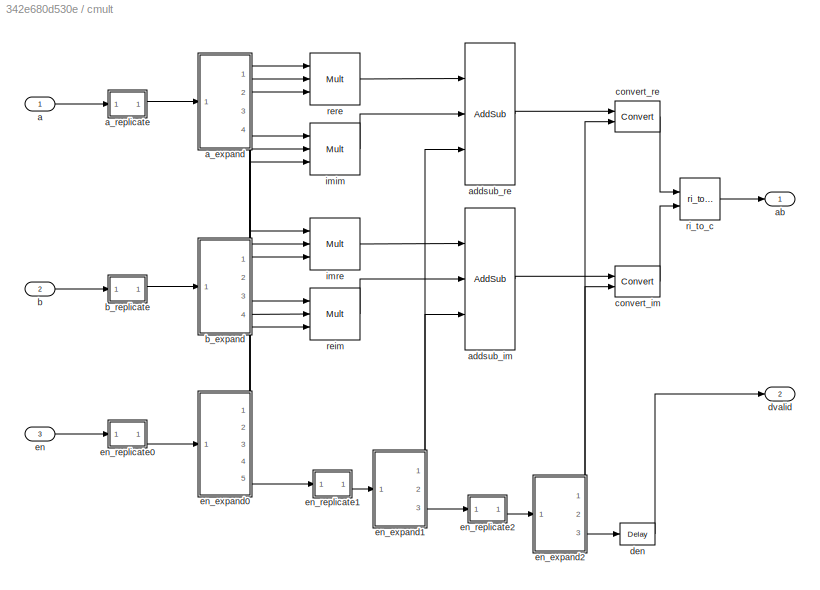
BLOCK [SubSystem] cmult
  AncestorBlock = casper_library_multipliers/cmult
  AttributesFormatString = 18_17 * 18_17 ==> 37_14\nTruncate, Wrap\nLatency=1
  FunctionWithSeparateData = off
  MaskHideContents = off
  MinAlgLoopOccurrences = off
  Opaque = off
  Ports = [3, 2]
  PropExecContextOutsideSubsystem = off
  RTWSystemCode = Auto
  RequestExecContextInheritance = off
  UserDataPersistent = on
BLOCK [Inport] cmult/a
  IconDisplay = Port number
BLOCK [SubSystem] cmult/a_expand
  AncestorBlock = casper_library_flow_control/bus_expand
  AttributesFormatString = 4 outputs
  FunctionWithSeparateData = off
  MaskHideContents = off
  MinAlgLoopOccurrences = off
  Opaque = off
  Ports = [1, 4]
  PropExecContextOutsideSubsystem = off
  RTWSystemCode = Auto
  RequestExecContextInheritance = off
  UserDataPersistent = on
BLOCK [Inport] cmult/a_expand/bus_in
  IconDisplay = Port number
BLOCK [Outport] cmult/a_expand/lsb_out1
  IconDisplay = Port number
  Port = 4
BLOCK [Outport] cmult/a_expand/msb_out4
  IconDisplay = Port number
BLOCK [Outport] cmult/a_expand/out2
  IconDisplay = Port number
  Port = 3
BLOCK [Outport] cmult/a_expand/out3
  IconDisplay = Port number
  Port = 2
BLOCK [Reference] cmult/a_expand/reinterpret1  REF=xbsIndex_r4/Reinterpret
  Ports = [1, 1]
  SourceBlock = xbsIndex_r4/Reinterpret
  SourceType = Xilinx Type Reinterpreter Block
  arith_type = Signed  (2's comp)
  bin_pt = 17
  block_type = reinterpret
  force_arith_type = on
  force_bin_pt = on
  has_advanced_control = 0
  sg_icon_stat = 50,20,1,1,white,blue,0,6b04d0b0,right,,[ ],[ ]
  sggui_pos = -1,-1,-1,-1
BLOCK [Reference] cmult/a_expand/reinterpret2  REF=xbsIndex_r4/Reinterpret
  Ports = [1, 1]
  SourceBlock = xbsIndex_r4/Reinterpret
  SourceType = Xilinx Type Reinterpreter Block
  arith_type = Signed  (2's comp)
  bin_pt = 17
  block_type = reinterpret
  force_arith_type = on
  force_bin_pt = on
  has_advanced_control = 0
  sg_icon_stat = 50,20,1,1,white,blue,0,6b04d0b0,right,,[ ],[ ]
  sggui_pos = -1,-1,-1,-1
BLOCK [Reference] cmult/a_expand/reinterpret3  REF=xbsIndex_r4/Reinterpret
  Ports = [1, 1]
  SourceBlock = xbsIndex_r4/Reinterpret
  SourceType = Xilinx Type Reinterpreter Block
  arith_type = Signed  (2's comp)
  bin_pt = 17
  block_type = reinterpret
  force_arith_type = on
  force_bin_pt = on
  has_advanced_control = 0
  sg_icon_stat = 50,20,1,1,white,blue,0,6b04d0b0,right,,[ ],[ ]
  sggui_pos = -1,-1,-1,-1
BLOCK [Reference] cmult/a_expand/reinterpret4  REF=xbsIndex_r4/Reinterpret
  Ports = [1, 1]
  SourceBlock = xbsIndex_r4/Reinterpret
  SourceType = Xilinx Type Reinterpreter Block
  arith_type = Signed  (2's comp)
  bin_pt = 17
  block_type = reinterpret
  force_arith_type = on
  force_bin_pt = on
  has_advanced_control = 0
  sg_icon_stat = 50,20,1,1,white,blue,0,6b04d0b0,right,,[ ],[ ]
  sggui_pos = -1,-1,-1,-1
BLOCK [Reference] cmult/a_expand/slice1  REF=xbsIndex_r4/Slice
  Ports = [1, 1]
  SourceBlock = xbsIndex_r4/Slice
  SourceType = Xilinx Bit Slice Extractor Block
  base0 = LSB of Input
  base1 = MSB of Input
  bit0 = 0
  bit1 = -54
  block_type = slice
  boolean_output = off
  dbl_ovrd = off
  has_advanced_control = 0
  mode = Upper Bit Location + Width
  nbits = 18
  sg_icon_stat = 50,20,1,1,white,blue,0,1fd851a7,right,,[ ],[ ]
  sggui_pos = 1080,45,594,505
BLOCK [Reference] cmult/a_expand/slice2  REF=xbsIndex_r4/Slice
  Ports = [1, 1]
  SourceBlock = xbsIndex_r4/Slice
  SourceType = Xilinx Bit Slice Extractor Block
  base0 = LSB of Input
  base1 = MSB of Input
  bit0 = 0
  bit1 = -36
  block_type = slice
  boolean_output = off
  dbl_ovrd = off
  has_advanced_control = 0
  mode = Upper Bit Location + Width
  nbits = 18
  sg_icon_stat = 50,20,1,1,white,blue,0,1fd851a7,right,,[ ],[ ]
  sggui_pos = 1080,45,594,505
BLOCK [Reference] cmult/a_expand/slice3  REF=xbsIndex_r4/Slice
  Ports = [1, 1]
  SourceBlock = xbsIndex_r4/Slice
  SourceType = Xilinx Bit Slice Extractor Block
  base0 = LSB of Input
  base1 = MSB of Input
  bit0 = 0
  bit1 = -18
  block_type = slice
  boolean_output = off
  dbl_ovrd = off
  has_advanced_control = 0
  mode = Upper Bit Location + Width
  nbits = 18
  sg_icon_stat = 50,20,1,1,white,blue,0,1fd851a7,right,,[ ],[ ]
  sggui_pos = 1730,253,594,505
BLOCK [Reference] cmult/a_expand/slice4  REF=xbsIndex_r4/Slice
  Ports = [1, 1]
  SourceBlock = xbsIndex_r4/Slice
  SourceType = Xilinx Bit Slice Extractor Block
  base0 = LSB of Input
  base1 = MSB of Input
  bit0 = 0
  bit1 = 0
  block_type = slice
  boolean_output = off
  dbl_ovrd = off
  has_advanced_control = 0
  mode = Upper Bit Location + Width
  nbits = 18
  sg_icon_stat = 50,20,1,1,white,blue,0,1fd851a7,right,,[ ],[ ]
  sggui_pos = 1700,223,594,505
BLOCK [SubSystem] cmult/a_replicate
  AncestorBlock = casper_library_bus/bus_replicate
  FunctionWithSeparateData = off
  MaskHideContents = off
  MinAlgLoopOccurrences = off
  Opaque = off
  Ports = [1, 1]
  PropExecContextOutsideSubsystem = off
  RTWSystemCode = Auto
  RequestExecContextInheritance = off
  UserDataPersistent = on
BLOCK [SubSystem] cmult/a_replicate/bussify
  AncestorBlock = casper_library_flow_control/bus_create
  FunctionWithSeparateData = off
  MaskHideContents = off
  MinAlgLoopOccurrences = off
  Opaque = off
  Ports = [2, 1]
  PropExecContextOutsideSubsystem = off
  RTWSystemCode = Auto
  RequestExecContextInheritance = off
  UserDataPersistent = on
BLOCK [Outport] cmult/a_replicate/bussify/bus_out
  IconDisplay = Port number
BLOCK [Reference] cmult/a_replicate/bussify/concatenate  REF=xbsIndex_r4/Concat
  Ports = [2, 1]
  SourceBlock = xbsIndex_r4/Concat
  SourceType = Xilinx Bus Concatenator Block
  block_type = concat
  block_version = 11.4
  dbl_ovrd = off
  has_advanced_control = 0
  infoedit = Concatenates two or more inputs.  Output will be cast to an unsigned value with the binary point at zero.
  num_inputs = 2
  sg_icon_stat = 50,60,2,1,white,blue,0,16398980,right,,[ ],[ ]
  sggui_pos = -1,-1,-1,-1
BLOCK [Inport] cmult/a_replicate/bussify/in1
  IconDisplay = Port number
BLOCK [Inport] cmult/a_replicate/bussify/in2
  IconDisplay = Port number
  Port = 2
BLOCK [Reference] cmult/a_replicate/bussify/reinterpret1  REF=xbsIndex_r4/Reinterpret
  Ports = [1, 1]
  SourceBlock = xbsIndex_r4/Reinterpret
  SourceType = Xilinx Type Reinterpreter Block
  arith_type = Unsigned
  bin_pt = 0
  block_type = reinterpret
  block_version = 11.4
  force_arith_type = on
  force_bin_pt = on
  has_advanced_control = 0
  sg_icon_stat = 50,20,1,1,white,blue,0,6b04d0b0,right,,[ ],[ ]
  sggui_pos = -1,-1,-1,-1
BLOCK [Reference] cmult/a_replicate/bussify/reinterpret2  REF=xbsIndex_r4/Reinterpret
  Ports = [1, 1]
  SourceBlock = xbsIndex_r4/Reinterpret
  SourceType = Xilinx Type Reinterpreter Block
  arith_type = Unsigned
  bin_pt = 0
  block_type = reinterpret
  block_version = 11.4
  force_arith_type = on
  force_bin_pt = on
  has_advanced_control = 0
  sg_icon_stat = 50,20,1,1,white,blue,0,6b04d0b0,right,,[ ],[ ]
  sggui_pos = 281,224,671,460
BLOCK [Inport] cmult/a_replicate/in
  IconDisplay = Port number
BLOCK [Outport] cmult/a_replicate/out
  IconDisplay = Port number
BLOCK [Outport] cmult/ab
  IconDisplay = Port number
BLOCK [Reference] cmult/addsub_im  REF=xbsIndex_r4/AddSub
  Ports = [3, 1]
  SourceBlock = xbsIndex_r4/AddSub
  SourceType = Xilinx Adder/Subtracter Block
  arith_type = Unsigned
  bin_pt = 14
  block_type = addsub
  dbl_ovrd = off
  en = on
  has_advanced_control = 0
  hw_selection = Fabric
  latency = 1
  mode = Addition
  n_bits = 16
  overflow = Wrap
  pipelined = on
  precision = Full
  quantization = Truncate
  sg_icon_stat = 50,142,3,1,white,blue,0,96ed0f94,right,,[ ],[ ]
  sg_mask_display = fprintf('','COMMENT: begin icon graphics');\npatch([0 50 50 0 0 ],[0 0 142 142 0 ],[0.77 0.82 0.91 ]);\nplot([0 50 50 0 0 ],[0 0 142 142 0 ]);\npatch([9.425 19.54 26.54 33.54 40.54 26.54 16.425 9.425 ],[78.77 78.77 85.77 78.77 85.77 85.77 85.77 78.77 ],[1 1 1 ]);\npatch([16.425 26.54 19.54 9.425 16.425 ],[71.77 71.77 78.77 78.77 71.77 ],[0.931 0.946 0.973 ]);\npatch([9.425 19.54 26.54 16.425 9.425 ],[6...<+585ch>
  sggui_pos = -1,-1,-1,-1
  use_behavioral_HDL = on
  use_carryin = off
  use_carryout = off
  use_rpm = on
  xl_area = [0,0,0,0,0,0,0]
  xl_use_area = off
BLOCK [Reference] cmult/addsub_re  REF=xbsIndex_r4/AddSub
  Ports = [3, 1]
  SourceBlock = xbsIndex_r4/AddSub
  SourceType = Xilinx Adder/Subtracter Block
  arith_type = Unsigned
  bin_pt = 14
  block_type = addsub
  dbl_ovrd = off
  en = on
  has_advanced_control = 0
  hw_selection = Fabric
  latency = 1
  mode = Subtraction
  n_bits = 16
  overflow = Wrap
  pipelined = on
  precision = Full
  quantization = Truncate
  sg_icon_stat = 50,142,3,1,white,blue,0,30170062,right,,[ ],[ ]
  sg_mask_display = fprintf('','COMMENT: begin icon graphics');\npatch([0 50 50 0 0 ],[0 0 142 142 0 ],[0.77 0.82 0.91 ]);\nplot([0 50 50 0 0 ],[0 0 142 142 0 ]);\npatch([9.425 19.54 26.54 33.54 40.54 26.54 16.425 9.425 ],[78.77 78.77 85.77 78.77 85.77 85.77 85.77 78.77 ],[1 1 1 ]);\npatch([16.425 26.54 19.54 9.425 16.425 ],[71.77 71.77 78.77 78.77 71.77 ],[0.931 0.946 0.973 ]);\npatch([9.425 19.54 26.54 16.425 9.425 ],[6...<+585ch>
  sggui_pos = -1,-1,-1,-1
  use_behavioral_HDL = on
  use_carryin = off
  use_carryout = off
  use_rpm = on
  xl_area = [0,0,0,0,0,0,0]
  xl_use_area = off
BLOCK [Inport] cmult/b
  IconDisplay = Port number
  Port = 2
BLOCK [SubSystem] cmult/b_expand
  AncestorBlock = casper_library_flow_control/bus_expand
  AttributesFormatString = 4 outputs
  FunctionWithSeparateData = off
  MaskHideContents = off
  MinAlgLoopOccurrences = off
  Opaque = off
  Ports = [1, 4]
  PropExecContextOutsideSubsystem = off
  RTWSystemCode = Auto
  RequestExecContextInheritance = off
  UserDataPersistent = on
BLOCK [Inport] cmult/b_expand/bus_in
  IconDisplay = Port number
BLOCK [Outport] cmult/b_expand/lsb_out1
  IconDisplay = Port number
  Port = 4
BLOCK [Outport] cmult/b_expand/msb_out4
  IconDisplay = Port number
BLOCK [Outport] cmult/b_expand/out2
  IconDisplay = Port number
  Port = 3
BLOCK [Outport] cmult/b_expand/out3
  IconDisplay = Port number
  Port = 2
BLOCK [Reference] cmult/b_expand/reinterpret1  REF=xbsIndex_r4/Reinterpret
  Ports = [1, 1]
  SourceBlock = xbsIndex_r4/Reinterpret
  SourceType = Xilinx Type Reinterpreter Block
  arith_type = Signed  (2's comp)
  bin_pt = 17
  block_type = reinterpret
  force_arith_type = on
  force_bin_pt = on
  has_advanced_control = 0
  sg_icon_stat = 50,20,1,1,white,blue,0,6b04d0b0,right,,[ ],[ ]
  sggui_pos = -1,-1,-1,-1
BLOCK [Reference] cmult/b_expand/reinterpret2  REF=xbsIndex_r4/Reinterpret
  Ports = [1, 1]
  SourceBlock = xbsIndex_r4/Reinterpret
  SourceType = Xilinx Type Reinterpreter Block
  arith_type = Signed  (2's comp)
  bin_pt = 17
  block_type = reinterpret
  force_arith_type = on
  force_bin_pt = on
  has_advanced_control = 0
  sg_icon_stat = 50,20,1,1,white,blue,0,6b04d0b0,right,,[ ],[ ]
  sggui_pos = -1,-1,-1,-1
BLOCK [Reference] cmult/b_expand/reinterpret3  REF=xbsIndex_r4/Reinterpret
  Ports = [1, 1]
  SourceBlock = xbsIndex_r4/Reinterpret
  SourceType = Xilinx Type Reinterpreter Block
  arith_type = Signed  (2's comp)
  bin_pt = 17
  block_type = reinterpret
  force_arith_type = on
  force_bin_pt = on
  has_advanced_control = 0
  sg_icon_stat = 50,20,1,1,white,blue,0,6b04d0b0,right,,[ ],[ ]
  sggui_pos = -1,-1,-1,-1
BLOCK [Reference] cmult/b_expand/reinterpret4  REF=xbsIndex_r4/Reinterpret
  Ports = [1, 1]
  SourceBlock = xbsIndex_r4/Reinterpret
  SourceType = Xilinx Type Reinterpreter Block
  arith_type = Signed  (2's comp)
  bin_pt = 17
  block_type = reinterpret
  force_arith_type = on
  force_bin_pt = on
  has_advanced_control = 0
  sg_icon_stat = 50,20,1,1,white,blue,0,6b04d0b0,right,,[ ],[ ]
  sggui_pos = -1,-1,-1,-1
BLOCK [Reference] cmult/b_expand/slice1  REF=xbsIndex_r4/Slice
  Ports = [1, 1]
  SourceBlock = xbsIndex_r4/Slice
  SourceType = Xilinx Bit Slice Extractor Block
  base0 = LSB of Input
  base1 = MSB of Input
  bit0 = 0
  bit1 = -54
  block_type = slice
  boolean_output = off
  dbl_ovrd = off
  has_advanced_control = 0
  mode = Upper Bit Location + Width
  nbits = 18
  sg_icon_stat = 50,20,1,1,white,blue,0,1fd851a7,right,,[ ],[ ]
  sggui_pos = 20,45,543,459
BLOCK [Reference] cmult/b_expand/slice2  REF=xbsIndex_r4/Slice
  Ports = [1, 1]
  SourceBlock = xbsIndex_r4/Slice
  SourceType = Xilinx Bit Slice Extractor Block
  base0 = LSB of Input
  base1 = MSB of Input
  bit0 = 0
  bit1 = -36
  block_type = slice
  boolean_output = off
  dbl_ovrd = off
  has_advanced_control = 0
  mode = Upper Bit Location + Width
  nbits = 18
  sg_icon_stat = 50,20,1,1,white,blue,0,1fd851a7,right,,[ ],[ ]
  sggui_pos = 20,45,543,459
BLOCK [Reference] cmult/b_expand/slice3  REF=xbsIndex_r4/Slice
  Ports = [1, 1]
  SourceBlock = xbsIndex_r4/Slice
  SourceType = Xilinx Bit Slice Extractor Block
  base0 = LSB of Input
  base1 = MSB of Input
  bit0 = 0
  bit1 = -18
  block_type = slice
  boolean_output = off
  dbl_ovrd = off
  has_advanced_control = 0
  mode = Upper Bit Location + Width
  nbits = 18
  sg_icon_stat = 50,20,1,1,white,blue,0,1fd851a7,right,,[ ],[ ]
  sggui_pos = -1,-1,-1,-1
BLOCK [Reference] cmult/b_expand/slice4  REF=xbsIndex_r4/Slice
  Ports = [1, 1]
  SourceBlock = xbsIndex_r4/Slice
  SourceType = Xilinx Bit Slice Extractor Block
  base0 = LSB of Input
  base1 = MSB of Input
  bit0 = 0
  bit1 = 0
  block_type = slice
  boolean_output = off
  dbl_ovrd = off
  has_advanced_control = 0
  mode = Upper Bit Location + Width
  nbits = 18
  sg_icon_stat = 50,20,1,1,white,blue,0,1fd851a7,right,,[ ],[ ]
  sggui_pos = -1,-1,-1,-1
BLOCK [SubSystem] cmult/b_replicate
  AncestorBlock = casper_library_bus/bus_replicate
  FunctionWithSeparateData = off
  MaskHideContents = off
  MinAlgLoopOccurrences = off
  Opaque = off
  Ports = [1, 1]
  PropExecContextOutsideSubsystem = off
  RTWSystemCode = Auto
  RequestExecContextInheritance = off
  UserDataPersistent = on
BLOCK [SubSystem] cmult/b_replicate/bussify
  AncestorBlock = casper_library_flow_control/bus_create
  FunctionWithSeparateData = off
  MaskHideContents = off
  MinAlgLoopOccurrences = off
  Opaque = off
  Ports = [2, 1]
  PropExecContextOutsideSubsystem = off
  RTWSystemCode = Auto
  RequestExecContextInheritance = off
  UserDataPersistent = on
BLOCK [Outport] cmult/b_replicate/bussify/bus_out
  IconDisplay = Port number
BLOCK [Reference] cmult/b_replicate/bussify/concatenate  REF=xbsIndex_r4/Concat
  Ports = [2, 1]
  SourceBlock = xbsIndex_r4/Concat
  SourceType = Xilinx Bus Concatenator Block
  block_type = concat
  block_version = 11.4
  dbl_ovrd = off
  has_advanced_control = 0
  infoedit = Concatenates two or more inputs.  Output will be cast to an unsigned value with the binary point at zero.
  num_inputs = 2
  sg_icon_stat = 50,60,2,1,white,blue,0,16398980,right,,[ ],[ ]
  sggui_pos = -1,-1,-1,-1
BLOCK [Inport] cmult/b_replicate/bussify/in1
  IconDisplay = Port number
BLOCK [Inport] cmult/b_replicate/bussify/in2
  IconDisplay = Port number
  Port = 2
BLOCK [Reference] cmult/b_replicate/bussify/reinterpret1  REF=xbsIndex_r4/Reinterpret
  Ports = [1, 1]
  SourceBlock = xbsIndex_r4/Reinterpret
  SourceType = Xilinx Type Reinterpreter Block
  arith_type = Unsigned
  bin_pt = 0
  block_type = reinterpret
  block_version = 11.4
  force_arith_type = on
  force_bin_pt = on
  has_advanced_control = 0
  sg_icon_stat = 50,20,1,1,white,blue,0,6b04d0b0,right,,[ ],[ ]
  sggui_pos = -1,-1,-1,-1
BLOCK [Reference] cmult/b_replicate/bussify/reinterpret2  REF=xbsIndex_r4/Reinterpret
  Ports = [1, 1]
  SourceBlock = xbsIndex_r4/Reinterpret
  SourceType = Xilinx Type Reinterpreter Block
  arith_type = Unsigned
  bin_pt = 0
  block_type = reinterpret
  block_version = 11.4
  force_arith_type = on
  force_bin_pt = on
  has_advanced_control = 0
  sg_icon_stat = 50,20,1,1,white,blue,0,6b04d0b0,right,,[ ],[ ]
  sggui_pos = 281,224,671,460
BLOCK [Inport] cmult/b_replicate/in
  IconDisplay = Port number
BLOCK [Outport] cmult/b_replicate/out
  IconDisplay = Port number
BLOCK [Reference] cmult/convert_im  REF=xbsIndex_r4/Convert
  Ports = [2, 1]
  SourceBlock = xbsIndex_r4/Convert
  SourceType = Xilinx Type Converter Block
  arith_type = Signed  (2's comp)
  bin_pt = 14
  block_type = convert
  dbl_ovrd = off
  en = on
  exp_bits = 8
  float_type = Single
  fraction_bits = 24
  gui_display_data_type = Fixed-point
  has_advanced_control = 0
  infoedit = Hardware notes: rounding and saturating require hardware resources; truncating and wrapping do not.
  latency = 1
  n_bits = 37
  overflow = Wrap
  pipeline = on
  quantization = Truncate
  sg_icon_stat = 45,33,2,1,white,blue,0,52cb1987,right,,[ ],[ ]
  sg_mask_display = fprintf('','COMMENT: begin icon graphics');\npatch([0 45 45 0 0 ],[0 0 33 33 0 ],[0.77 0.82 0.91 ]);\nplot([0 45 45 0 0 ],[0 0 33 33 0 ]);\npatch([13.1 18.88 22.88 26.88 30.88 22.88 17.1 13.1 ],[20.44 20.44 24.44 20.44 24.44 24.44 24.44 20.44 ],[1 1 1 ]);\npatch([17.1 22.88 18.88 13.1 17.1 ],[16.44 16.44 20.44 20.44 16.44 ],[0.931 0.946 0.973 ]);\npatch([13.1 18.88 22.88 17.1 13.1 ],[12.44 12.44 16.44 ...<+430ch>
  sggui_pos = -1,-1,-1,-1
  xl_area = [0,0,0,0,0,0,0]
  xl_use_area = off
BLOCK [Reference] cmult/convert_re  REF=xbsIndex_r4/Convert
  Ports = [2, 1]
  SourceBlock = xbsIndex_r4/Convert
  SourceType = Xilinx Type Converter Block
  arith_type = Signed  (2's comp)
  bin_pt = 14
  block_type = convert
  dbl_ovrd = off
  en = on
  exp_bits = 8
  float_type = Single
  fraction_bits = 24
  gui_display_data_type = Fixed-point
  has_advanced_control = 0
  infoedit = Hardware notes: rounding and saturating require hardware resources; truncating and wrapping do not.
  latency = 1
  n_bits = 37
  overflow = Wrap
  pipeline = on
  quantization = Truncate
  sg_icon_stat = 45,33,2,1,white,blue,0,52cb1987,right,,[ ],[ ]
  sg_mask_display = fprintf('','COMMENT: begin icon graphics');\npatch([0 45 45 0 0 ],[0 0 33 33 0 ],[0.77 0.82 0.91 ]);\nplot([0 45 45 0 0 ],[0 0 33 33 0 ]);\npatch([13.1 18.88 22.88 26.88 30.88 22.88 17.1 13.1 ],[20.44 20.44 24.44 20.44 24.44 24.44 24.44 20.44 ],[1 1 1 ]);\npatch([17.1 22.88 18.88 13.1 17.1 ],[16.44 16.44 20.44 20.44 16.44 ],[0.931 0.946 0.973 ]);\npatch([13.1 18.88 22.88 17.1 13.1 ],[12.44 12.44 16.44 ...<+430ch>
  sggui_pos = -1,-1,-1,-1
  xl_area = [0,0,0,0,0,0,0]
  xl_use_area = off
BLOCK [Reference] cmult/den  REF=xbsIndex_r4/Delay
  Ports = [1, 1]
  SourceBlock = xbsIndex_r4/Delay
  SourceType = Xilinx Delay Block
  block_type = delay
  dbl_ovrd = off
  en = off
  has_advanced_control = 0
  infoedit = Hardware notes: A delay line is a chain, each link of which is an SRL16 followed by a flip-flop.
  infoeditControl = Selection of Reset will increase slice count due to use of real FFs and instead of SRLs
  latency = 1
  reg_retiming = on
  rst = off
  sg_icon_stat = 35,22,1,1,white,blue,0,07b98262,right,,[ ],[ ]
  sg_mask_display = fprintf('','COMMENT: begin icon graphics');\npatch([0 35 35 0 0 ],[0 0 22 22 0 ],[0.77 0.82 0.91 ]);\nplot([0 35 35 0 0 ],[0 0 22 22 0 ]);\npatch([10.325 14.66 17.66 20.66 23.66 17.66 13.325 10.325 ],[14.33 14.33 17.33 14.33 17.33 17.33 17.33 14.33 ],[1 1 1 ]);\npatch([13.325 17.66 14.66 10.325 13.325 ],[11.33 11.33 14.33 14.33 11.33 ],[0.931 0.946 0.973 ]);\npatch([10.325 14.66 17.66 13.325 10.325 ],[...<+322ch>
  sggui_pos = -1,-1,-1,-1
  xl_area = [0,0,0,0,0,0,0]
  xl_use_area = off
BLOCK [Outport] cmult/dvalid
  IconDisplay = Port number
  Port = 2
BLOCK [Inport] cmult/en
  IconDisplay = Port number
  Port = 3
BLOCK [SubSystem] cmult/en_expand0
  AncestorBlock = casper_library_flow_control/bus_expand
  AttributesFormatString = 5 outputs
  FunctionWithSeparateData = off
  MaskHideContents = off
  MinAlgLoopOccurrences = off
  Opaque = off
  Ports = [1, 5]
  PropExecContextOutsideSubsystem = off
  RTWSystemCode = Auto
  RequestExecContextInheritance = off
  UserDataPersistent = on
BLOCK [Inport] cmult/en_expand0/bus_in
  IconDisplay = Port number
BLOCK [Outport] cmult/en_expand0/lsb_out1
  IconDisplay = Port number
  Port = 5
BLOCK [Outport] cmult/en_expand0/msb_out5
  IconDisplay = Port number
BLOCK [Outport] cmult/en_expand0/out2
  IconDisplay = Port number
  Port = 4
BLOCK [Outport] cmult/en_expand0/out3
  IconDisplay = Port number
  Port = 3
BLOCK [Outport] cmult/en_expand0/out4
  IconDisplay = Port number
  Port = 2
BLOCK [Reference] cmult/en_expand0/slice1  REF=xbsIndex_r4/Slice
  Ports = [1, 1]
  SourceBlock = xbsIndex_r4/Slice
  SourceType = Xilinx Bit Slice Extractor Block
  base0 = LSB of Input
  base1 = MSB of Input
  bit0 = 0
  bit1 = -4
  block_type = slice
  boolean_output = on
  dbl_ovrd = off
  has_advanced_control = 0
  mode = Upper Bit Location + Width
  nbits = 1
  sg_icon_stat = 50,20,1,1,white,blue,0,1fd851a7,right,,[ ],[ ]
  sggui_pos = 20,45,543,459
BLOCK [Reference] cmult/en_expand0/slice2  REF=xbsIndex_r4/Slice
  Ports = [1, 1]
  SourceBlock = xbsIndex_r4/Slice
  SourceType = Xilinx Bit Slice Extractor Block
  base0 = LSB of Input
  base1 = MSB of Input
  bit0 = 0
  bit1 = -3
  block_type = slice
  boolean_output = on
  dbl_ovrd = off
  has_advanced_control = 0
  mode = Upper Bit Location + Width
  nbits = 1
  sg_icon_stat = 50,20,1,1,white,blue,0,1fd851a7,right,,[ ],[ ]
  sggui_pos = 20,45,543,459
BLOCK [Reference] cmult/en_expand0/slice3  REF=xbsIndex_r4/Slice
  Ports = [1, 1]
  SourceBlock = xbsIndex_r4/Slice
  SourceType = Xilinx Bit Slice Extractor Block
  base0 = LSB of Input
  base1 = MSB of Input
  bit0 = 0
  bit1 = -2
  block_type = slice
  boolean_output = on
  dbl_ovrd = off
  has_advanced_control = 0
  mode = Upper Bit Location + Width
  nbits = 1
  sg_icon_stat = 50,20,1,1,white,blue,0,1fd851a7,right,,[ ],[ ]
  sggui_pos = -1,-1,-1,-1
BLOCK [Reference] cmult/en_expand0/slice4  REF=xbsIndex_r4/Slice
  Ports = [1, 1]
  SourceBlock = xbsIndex_r4/Slice
  SourceType = Xilinx Bit Slice Extractor Block
  base0 = LSB of Input
  base1 = MSB of Input
  bit0 = 0
  bit1 = -1
  block_type = slice
  boolean_output = on
  dbl_ovrd = off
  has_advanced_control = 0
  mode = Upper Bit Location + Width
  nbits = 1
  sg_icon_stat = 50,20,1,1,white,blue,0,1fd851a7,right,,[ ],[ ]
  sggui_pos = -1,-1,-1,-1
BLOCK [Reference] cmult/en_expand0/slice5  REF=xbsIndex_r4/Slice
  Ports = [1, 1]
  SourceBlock = xbsIndex_r4/Slice
  SourceType = Xilinx Bit Slice Extractor Block
  base0 = LSB of Input
  base1 = MSB of Input
  bit0 = 0
  bit1 = 0
  block_type = slice
  boolean_output = on
  dbl_ovrd = off
  has_advanced_control = 0
  mode = Upper Bit Location + Width
  nbits = 1
  sg_icon_stat = 50,20,1,1,white,blue,0,1fd851a7,right,,[ ],[ ]
  sggui_pos = -1,-1,-1,-1
BLOCK [SubSystem] cmult/en_expand1
  AncestorBlock = casper_library_flow_control/bus_expand
  AttributesFormatString = 3 outputs
  FunctionWithSeparateData = off
  MaskHideContents = off
  MinAlgLoopOccurrences = off
  Opaque = off
  Ports = [1, 3]
  PropExecContextOutsideSubsystem = off
  RTWSystemCode = Auto
  RequestExecContextInheritance = off
  UserDataPersistent = on
BLOCK [Inport] cmult/en_expand1/bus_in
  IconDisplay = Port number
BLOCK [Outport] cmult/en_expand1/lsb_out1
  IconDisplay = Port number
  Port = 3
BLOCK [Outport] cmult/en_expand1/msb_out3
  IconDisplay = Port number
BLOCK [Outport] cmult/en_expand1/out2
  IconDisplay = Port number
  Port = 2
BLOCK [Reference] cmult/en_expand1/slice1  REF=xbsIndex_r4/Slice
  Ports = [1, 1]
  SourceBlock = xbsIndex_r4/Slice
  SourceType = Xilinx Bit Slice Extractor Block
  base0 = LSB of Input
  base1 = MSB of Input
  bit0 = 0
  bit1 = -2
  block_type = slice
  boolean_output = on
  dbl_ovrd = off
  has_advanced_control = 0
  mode = Upper Bit Location + Width
  nbits = 1
  sg_icon_stat = 50,20,1,1,white,blue,0,1fd851a7,right,,[ ],[ ]
  sggui_pos = 20,45,543,459
BLOCK [Reference] cmult/en_expand1/slice2  REF=xbsIndex_r4/Slice
  Ports = [1, 1]
  SourceBlock = xbsIndex_r4/Slice
  SourceType = Xilinx Bit Slice Extractor Block
  base0 = LSB of Input
  base1 = MSB of Input
  bit0 = 0
  bit1 = -1
  block_type = slice
  boolean_output = on
  dbl_ovrd = off
  has_advanced_control = 0
  mode = Upper Bit Location + Width
  nbits = 1
  sg_icon_stat = 50,20,1,1,white,blue,0,1fd851a7,right,,[ ],[ ]
  sggui_pos = 20,45,543,459
BLOCK [Reference] cmult/en_expand1/slice3  REF=xbsIndex_r4/Slice
  Ports = [1, 1]
  SourceBlock = xbsIndex_r4/Slice
  SourceType = Xilinx Bit Slice Extractor Block
  base0 = LSB of Input
  base1 = MSB of Input
  bit0 = 0
  bit1 = 0
  block_type = slice
  boolean_output = on
  dbl_ovrd = off
  has_advanced_control = 0
  mode = Upper Bit Location + Width
  nbits = 1
  sg_icon_stat = 50,20,1,1,white,blue,0,1fd851a7,right,,[ ],[ ]
  sggui_pos = -1,-1,-1,-1
BLOCK [SubSystem] cmult/en_expand2
  AncestorBlock = casper_library_flow_control/bus_expand
  AttributesFormatString = 3 outputs
  FunctionWithSeparateData = off
  MaskHideContents = off
  MinAlgLoopOccurrences = off
  Opaque = off
  Ports = [1, 3]
  PropExecContextOutsideSubsystem = off
  RTWSystemCode = Auto
  RequestExecContextInheritance = off
  UserDataPersistent = on
BLOCK [Inport] cmult/en_expand2/bus_in
  IconDisplay = Port number
BLOCK [Outport] cmult/en_expand2/lsb_out1
  IconDisplay = Port number
  Port = 3
BLOCK [Outport] cmult/en_expand2/msb_out3
  IconDisplay = Port number
BLOCK [Outport] cmult/en_expand2/out2
  IconDisplay = Port number
  Port = 2
BLOCK [Reference] cmult/en_expand2/slice1  REF=xbsIndex_r4/Slice
  Ports = [1, 1]
  SourceBlock = xbsIndex_r4/Slice
  SourceType = Xilinx Bit Slice Extractor Block
  base0 = LSB of Input
  base1 = MSB of Input
  bit0 = 0
  bit1 = -2
  block_type = slice
  boolean_output = on
  dbl_ovrd = off
  has_advanced_control = 0
  mode = Upper Bit Location + Width
  nbits = 1
  sg_icon_stat = 50,20,1,1,white,blue,0,1fd851a7,right,,[ ],[ ]
  sggui_pos = 20,45,543,459
BLOCK [Reference] cmult/en_expand2/slice2  REF=xbsIndex_r4/Slice
  Ports = [1, 1]
  SourceBlock = xbsIndex_r4/Slice
  SourceType = Xilinx Bit Slice Extractor Block
  base0 = LSB of Input
  base1 = MSB of Input
  bit0 = 0
  bit1 = -1
  block_type = slice
  boolean_output = on
  dbl_ovrd = off
  has_advanced_control = 0
  mode = Upper Bit Location + Width
  nbits = 1
  sg_icon_stat = 50,20,1,1,white,blue,0,1fd851a7,right,,[ ],[ ]
  sggui_pos = 20,45,543,459
BLOCK [Reference] cmult/en_expand2/slice3  REF=xbsIndex_r4/Slice
  Ports = [1, 1]
  SourceBlock = xbsIndex_r4/Slice
  SourceType = Xilinx Bit Slice Extractor Block
  base0 = LSB of Input
  base1 = MSB of Input
  bit0 = 0
  bit1 = 0
  block_type = slice
  boolean_output = on
  dbl_ovrd = off
  has_advanced_control = 0
  mode = Upper Bit Location + Width
  nbits = 1
  sg_icon_stat = 50,20,1,1,white,blue,0,1fd851a7,right,,[ ],[ ]
  sggui_pos = -1,-1,-1,-1
BLOCK [SubSystem] cmult/en_replicate0
  AncestorBlock = casper_library_bus/bus_replicate
  FunctionWithSeparateData = off
  MaskHideContents = off
  MinAlgLoopOccurrences = off
  Opaque = off
  Ports = [1, 1]
  PropExecContextOutsideSubsystem = off
  RTWSystemCode = Auto
  RequestExecContextInheritance = off
  UserDataPersistent = on
BLOCK [SubSystem] cmult/en_replicate0/bussify
  AncestorBlock = casper_library_flow_control/bus_create
  FunctionWithSeparateData = off
  MaskHideContents = off
  MinAlgLoopOccurrences = off
  Opaque = off
  Ports = [5, 1]
  PropExecContextOutsideSubsystem = off
  RTWSystemCode = Auto
  RequestExecContextInheritance = off
  UserDataPersistent = on
BLOCK [Outport] cmult/en_replicate0/bussify/bus_out
  IconDisplay = Port number
BLOCK [Reference] cmult/en_replicate0/bussify/concatenate  REF=xbsIndex_r4/Concat
  Ports = [5, 1]
  SourceBlock = xbsIndex_r4/Concat
  SourceType = Xilinx Bus Concatenator Block
  block_type = concat
  block_version = 11.4
  dbl_ovrd = off
  has_advanced_control = 0
  infoedit = Concatenates two or more inputs.  Output will be cast to an unsigned value with the binary point at zero.
  num_inputs = 5
  sg_icon_stat = 50,180,5,1,white,blue,0,64797e70,right,,[ ],[ ]
  sg_mask_display = fprintf('','COMMENT: begin icon graphics');\npatch([0 50 50 0 0 ],[0 0 180 180 0 ],[0.77 0.82 0.91 ]);\nplot([0 50 50 0 0 ],[0 0 180 180 0 ]);\npatch([9.425 19.54 26.54 33.54 40.54 26.54 16.425 9.425 ],[97.77 97.77 104.77 97.77 104.77 104.77 104.77 97.77 ],[1 1 1 ]);\npatch([16.425 26.54 19.54 9.425 16.425 ],[90.77 90.77 97.77 97.77 90.77 ],[0.931 0.946 0.973 ]);\npatch([9.425 19.54 26.54 16.425 9.425 ...<+431ch>
  sggui_pos = -1,-1,-1,-1
BLOCK [Inport] cmult/en_replicate0/bussify/in1
  IconDisplay = Port number
BLOCK [Inport] cmult/en_replicate0/bussify/in2
  IconDisplay = Port number
  Port = 2
BLOCK [Inport] cmult/en_replicate0/bussify/in3
  IconDisplay = Port number
  Port = 3
BLOCK [Inport] cmult/en_replicate0/bussify/in4
  IconDisplay = Port number
  Port = 4
BLOCK [Inport] cmult/en_replicate0/bussify/in5
  IconDisplay = Port number
  Port = 5
BLOCK [Reference] cmult/en_replicate0/bussify/reinterpret1  REF=xbsIndex_r4/Reinterpret
  Ports = [1, 1]
  SourceBlock = xbsIndex_r4/Reinterpret
  SourceType = Xilinx Type Reinterpreter Block
  arith_type = Unsigned
  bin_pt = 0
  block_type = reinterpret
  block_version = 11.4
  force_arith_type = on
  force_bin_pt = on
  has_advanced_control = 0
  sg_icon_stat = 50,20,1,1,white,blue,0,6b04d0b0,right,,[ ],[ ]
  sggui_pos = -1,-1,-1,-1
BLOCK [Reference] cmult/en_replicate0/bussify/reinterpret2  REF=xbsIndex_r4/Reinterpret
  Ports = [1, 1]
  SourceBlock = xbsIndex_r4/Reinterpret
  SourceType = Xilinx Type Reinterpreter Block
  arith_type = Unsigned
  bin_pt = 0
  block_type = reinterpret
  block_version = 11.4
  force_arith_type = on
  force_bin_pt = on
  has_advanced_control = 0
  sg_icon_stat = 50,20,1,1,white,blue,0,6b04d0b0,right,,[ ],[ ]
  sggui_pos = 281,224,671,460
BLOCK [Reference] cmult/en_replicate0/bussify/reinterpret3  REF=xbsIndex_r4/Reinterpret
  Ports = [1, 1]
  SourceBlock = xbsIndex_r4/Reinterpret
  SourceType = Xilinx Type Reinterpreter Block
  arith_type = Unsigned
  bin_pt = 0
  block_type = reinterpret
  force_arith_type = on
  force_bin_pt = on
  has_advanced_control = 0
  sg_icon_stat = 50,20,1,1,white,blue,0,6b04d0b0,right,,[ ],[ ]
  sggui_pos = -1,-1,-1,-1
BLOCK [Reference] cmult/en_replicate0/bussify/reinterpret4  REF=xbsIndex_r4/Reinterpret
  Ports = [1, 1]
  SourceBlock = xbsIndex_r4/Reinterpret
  SourceType = Xilinx Type Reinterpreter Block
  arith_type = Unsigned
  bin_pt = 0
  block_type = reinterpret
  force_arith_type = on
  force_bin_pt = on
  has_advanced_control = 0
  sg_icon_stat = 50,20,1,1,white,blue,0,6b04d0b0,right,,[ ],[ ]
  sggui_pos = -1,-1,-1,-1
BLOCK [Reference] cmult/en_replicate0/bussify/reinterpret5  REF=xbsIndex_r4/Reinterpret
  Ports = [1, 1]
  SourceBlock = xbsIndex_r4/Reinterpret
  SourceType = Xilinx Type Reinterpreter Block
  arith_type = Unsigned
  bin_pt = 0
  block_type = reinterpret
  force_arith_type = on
  force_bin_pt = on
  has_advanced_control = 0
  sg_icon_stat = 50,20,1,1,white,blue,0,6b04d0b0,right,,[ ],[ ]
  sggui_pos = -1,-1,-1,-1
BLOCK [Inport] cmult/en_replicate0/in
  IconDisplay = Port number
BLOCK [Outport] cmult/en_replicate0/out
  IconDisplay = Port number
BLOCK [SubSystem] cmult/en_replicate1
  AncestorBlock = casper_library_bus/bus_replicate
  FunctionWithSeparateData = off
  MaskHideContents = off
  MinAlgLoopOccurrences = off
  Opaque = off
  Ports = [1, 1]
  PropExecContextOutsideSubsystem = off
  RTWSystemCode = Auto
  RequestExecContextInheritance = off
  UserDataPersistent = on
BLOCK [SubSystem] cmult/en_replicate1/bussify
  AncestorBlock = casper_library_flow_control/bus_create
  FunctionWithSeparateData = off
  MaskHideContents = off
  MinAlgLoopOccurrences = off
  Opaque = off
  Ports = [3, 1]
  PropExecContextOutsideSubsystem = off
  RTWSystemCode = Auto
  RequestExecContextInheritance = off
  UserDataPersistent = on
BLOCK [Outport] cmult/en_replicate1/bussify/bus_out
  IconDisplay = Port number
BLOCK [Reference] cmult/en_replicate1/bussify/concatenate  REF=xbsIndex_r4/Concat
  Ports = [3, 1]
  SourceBlock = xbsIndex_r4/Concat
  SourceType = Xilinx Bus Concatenator Block
  block_type = concat
  block_version = 11.4
  dbl_ovrd = off
  has_advanced_control = 0
  infoedit = Concatenates two or more inputs.  Output will be cast to an unsigned value with the binary point at zero.
  num_inputs = 3
  sg_icon_stat = 50,100,3,1,white,blue,0,61ef8218,right,,[ ],[ ]
  sg_mask_display = fprintf('','COMMENT: begin icon graphics');\npatch([0 50 50 0 0 ],[0 0 100 100 0 ],[0.77 0.82 0.91 ]);\nplot([0 50 50 0 0 ],[0 0 100 100 0 ]);\npatch([9.425 19.54 26.54 33.54 40.54 26.54 16.425 9.425 ],[57.77 57.77 64.77 57.77 64.77 64.77 64.77 57.77 ],[1 1 1 ]);\npatch([16.425 26.54 19.54 9.425 16.425 ],[50.77 50.77 57.77 57.77 50.77 ],[0.931 0.946 0.973 ]);\npatch([9.425 19.54 26.54 16.425 9.425 ],[4...<+425ch>
  sggui_pos = -1,-1,-1,-1
BLOCK [Inport] cmult/en_replicate1/bussify/in1
  IconDisplay = Port number
BLOCK [Inport] cmult/en_replicate1/bussify/in2
  IconDisplay = Port number
  Port = 2
BLOCK [Inport] cmult/en_replicate1/bussify/in3
  IconDisplay = Port number
  Port = 3
BLOCK [Reference] cmult/en_replicate1/bussify/reinterpret1  REF=xbsIndex_r4/Reinterpret
  Ports = [1, 1]
  SourceBlock = xbsIndex_r4/Reinterpret
  SourceType = Xilinx Type Reinterpreter Block
  arith_type = Unsigned
  bin_pt = 0
  block_type = reinterpret
  block_version = 11.4
  force_arith_type = on
  force_bin_pt = on
  has_advanced_control = 0
  sg_icon_stat = 50,20,1,1,white,blue,0,6b04d0b0,right,,[ ],[ ]
  sggui_pos = -1,-1,-1,-1
BLOCK [Reference] cmult/en_replicate1/bussify/reinterpret2  REF=xbsIndex_r4/Reinterpret
  Ports = [1, 1]
  SourceBlock = xbsIndex_r4/Reinterpret
  SourceType = Xilinx Type Reinterpreter Block
  arith_type = Unsigned
  bin_pt = 0
  block_type = reinterpret
  block_version = 11.4
  force_arith_type = on
  force_bin_pt = on
  has_advanced_control = 0
  sg_icon_stat = 50,20,1,1,white,blue,0,6b04d0b0,right,,[ ],[ ]
  sggui_pos = 281,224,671,460
BLOCK [Reference] cmult/en_replicate1/bussify/reinterpret3  REF=xbsIndex_r4/Reinterpret
  Ports = [1, 1]
  SourceBlock = xbsIndex_r4/Reinterpret
  SourceType = Xilinx Type Reinterpreter Block
  arith_type = Unsigned
  bin_pt = 0
  block_type = reinterpret
  force_arith_type = on
  force_bin_pt = on
  has_advanced_control = 0
  sg_icon_stat = 50,20,1,1,white,blue,0,6b04d0b0,right,,[ ],[ ]
  sggui_pos = -1,-1,-1,-1
BLOCK [Reference] cmult/en_replicate1/din0_0  REF=xbsIndex_r4/Delay
  Ports = [1, 1]
  SourceBlock = xbsIndex_r4/Delay
  SourceType = Xilinx Delay Block
  block_type = delay
  dbl_ovrd = off
  en = off
  has_advanced_control = 0
  infoedit = Hardware notes: A delay line is a chain, each link of which is an SRL16 followed by a flip-flop.
  infoeditControl = Selection of Reset will increase slice count due to use of real FFs and instead of SRLs
  latency = 1
  reg_retiming = off
  rst = off
  sg_icon_stat = 30,20,1,1,white,blue,0,07b98262,right,,[ ],[ ]
  sg_mask_display = fprintf('','COMMENT: begin icon graphics');\npatch([0 30 30 0 0 ],[0 0 20 20 0 ],[0.77 0.82 0.91 ]);\nplot([0 30 30 0 0 ],[0 0 20 20 0 ]);\npatch([10.55 13.44 15.44 17.44 19.44 15.44 12.55 10.55 ],[12.22 12.22 14.22 12.22 14.22 14.22 14.22 12.22 ],[1 1 1 ]);\npatch([12.55 15.44 13.44 10.55 12.55 ],[10.22 10.22 12.22 12.22 10.22 ],[0.931 0.946 0.973 ]);\npatch([10.55 13.44 15.44 12.55 10.55 ],[8.22 8.22...<+310ch>  <repeated x9 — deduplicated; at blocks: din0_0, din1_0, din1_1, din2_0, din2_1, din2_2, din0_1, din0_2>
  sggui_pos = -1,-1,-1,-1
  xl_area = [0,0,0,0,0,0,0]
  xl_use_area = off
BLOCK [Reference] cmult/en_replicate1/din1_0  REF=xbsIndex_r4/Delay
  Ports = [1, 1]
  SourceBlock = xbsIndex_r4/Delay
  SourceType = Xilinx Delay Block
  block_type = delay
  dbl_ovrd = off
  en = off
  has_advanced_control = 0
  infoedit = Hardware notes: A delay line is a chain, each link of which is an SRL16 followed by a flip-flop.
  infoeditControl = Selection of Reset will increase slice count due to use of real FFs and instead of SRLs
  latency = 1
  reg_retiming = off
  rst = off
  sg_icon_stat = 30,20,1,1,white,blue,0,07b98262,right,,[ ],[ ]
  sggui_pos = -1,-1,-1,-1
  xl_area = [0,0,0,0,0,0,0]
  xl_use_area = off
BLOCK [Reference] cmult/en_replicate1/din1_1  REF=xbsIndex_r4/Delay
  Ports = [1, 1]
  SourceBlock = xbsIndex_r4/Delay
  SourceType = Xilinx Delay Block
  block_type = delay
  dbl_ovrd = off
  en = off
  has_advanced_control = 0
  infoedit = Hardware notes: A delay line is a chain, each link of which is an SRL16 followed by a flip-flop.
  infoeditControl = Selection of Reset will increase slice count due to use of real FFs and instead of SRLs
  latency = 1
  reg_retiming = off
  rst = off
  sg_icon_stat = 30,20,1,1,white,blue,0,07b98262,right,,[ ],[ ]
  sggui_pos = -1,-1,-1,-1
  xl_area = [0,0,0,0,0,0,0]
  xl_use_area = off
BLOCK [Reference] cmult/en_replicate1/din2_0  REF=xbsIndex_r4/Delay
  Ports = [1, 1]
  SourceBlock = xbsIndex_r4/Delay
  SourceType = Xilinx Delay Block
  block_type = delay
  dbl_ovrd = off
  en = off
  has_advanced_control = 0
  infoedit = Hardware notes: A delay line is a chain, each link of which is an SRL16 followed by a flip-flop.
  infoeditControl = Selection of Reset will increase slice count due to use of real FFs and instead of SRLs
  latency = 1
  reg_retiming = off
  rst = off
  sg_icon_stat = 30,20,1,1,white,blue,0,07b98262,right,,[ ],[ ]
  sggui_pos = -1,-1,-1,-1
  xl_area = [0,0,0,0,0,0,0]
  xl_use_area = off
BLOCK [Reference] cmult/en_replicate1/din2_1  REF=xbsIndex_r4/Delay
  Ports = [1, 1]
  SourceBlock = xbsIndex_r4/Delay
  SourceType = Xilinx Delay Block
  block_type = delay
  dbl_ovrd = off
  en = off
  has_advanced_control = 0
  infoedit = Hardware notes: A delay line is a chain, each link of which is an SRL16 followed by a flip-flop.
  infoeditControl = Selection of Reset will increase slice count due to use of real FFs and instead of SRLs
  latency = 1
  reg_retiming = off
  rst = off
  sg_icon_stat = 30,20,1,1,white,blue,0,07b98262,right,,[ ],[ ]
  sggui_pos = -1,-1,-1,-1
  xl_area = [0,0,0,0,0,0,0]
  xl_use_area = off
BLOCK [Reference] cmult/en_replicate1/din2_2  REF=xbsIndex_r4/Delay
  Ports = [1, 1]
  SourceBlock = xbsIndex_r4/Delay
  SourceType = Xilinx Delay Block
  block_type = delay
  dbl_ovrd = off
  en = off
  has_advanced_control = 0
  infoedit = Hardware notes: A delay line is a chain, each link of which is an SRL16 followed by a flip-flop.
  infoeditControl = Selection of Reset will increase slice count due to use of real FFs and instead of SRLs
  latency = 1
  reg_retiming = off
  rst = off
  sg_icon_stat = 30,20,1,1,white,blue,0,07b98262,right,,[ ],[ ]
  sggui_pos = -1,-1,-1,-1
  xl_area = [0,0,0,0,0,0,0]
  xl_use_area = off
BLOCK [Inport] cmult/en_replicate1/in
  IconDisplay = Port number
BLOCK [Outport] cmult/en_replicate1/out
  IconDisplay = Port number
BLOCK [SubSystem] cmult/en_replicate2
  AncestorBlock = casper_library_bus/bus_replicate
  FunctionWithSeparateData = off
  MaskHideContents = off
  MinAlgLoopOccurrences = off
  Opaque = off
  Ports = [1, 1]
  PropExecContextOutsideSubsystem = off
  RTWSystemCode = Auto
  RequestExecContextInheritance = off
  UserDataPersistent = on
BLOCK [SubSystem] cmult/en_replicate2/bussify
  AncestorBlock = casper_library_flow_control/bus_create
  FunctionWithSeparateData = off
  MaskHideContents = off
  MinAlgLoopOccurrences = off
  Opaque = off
  Ports = [3, 1]
  PropExecContextOutsideSubsystem = off
  RTWSystemCode = Auto
  RequestExecContextInheritance = off
  UserDataPersistent = on
BLOCK [Outport] cmult/en_replicate2/bussify/bus_out
  IconDisplay = Port number
BLOCK [Reference] cmult/en_replicate2/bussify/concatenate  REF=xbsIndex_r4/Concat
  Ports = [3, 1]
  SourceBlock = xbsIndex_r4/Concat
  SourceType = Xilinx Bus Concatenator Block
  block_type = concat
  block_version = 11.4
  dbl_ovrd = off
  has_advanced_control = 0
  infoedit = Concatenates two or more inputs.  Output will be cast to an unsigned value with the binary point at zero.
  num_inputs = 3
  sg_icon_stat = 50,100,3,1,white,blue,0,61ef8218,right,,[ ],[ ]
  sg_mask_display = fprintf('','COMMENT: begin icon graphics');\npatch([0 50 50 0 0 ],[0 0 100 100 0 ],[0.77 0.82 0.91 ]);\nplot([0 50 50 0 0 ],[0 0 100 100 0 ]);\npatch([9.425 19.54 26.54 33.54 40.54 26.54 16.425 9.425 ],[57.77 57.77 64.77 57.77 64.77 64.77 64.77 57.77 ],[1 1 1 ]);\npatch([16.425 26.54 19.54 9.425 16.425 ],[50.77 50.77 57.77 57.77 50.77 ],[0.931 0.946 0.973 ]);\npatch([9.425 19.54 26.54 16.425 9.425 ],[4...<+425ch>
  sggui_pos = -1,-1,-1,-1
BLOCK [Inport] cmult/en_replicate2/bussify/in1
  IconDisplay = Port number
BLOCK [Inport] cmult/en_replicate2/bussify/in2
  IconDisplay = Port number
  Port = 2
BLOCK [Inport] cmult/en_replicate2/bussify/in3
  IconDisplay = Port number
  Port = 3
BLOCK [Reference] cmult/en_replicate2/bussify/reinterpret1  REF=xbsIndex_r4/Reinterpret
  Ports = [1, 1]
  SourceBlock = xbsIndex_r4/Reinterpret
  SourceType = Xilinx Type Reinterpreter Block
  arith_type = Unsigned
  bin_pt = 0
  block_type = reinterpret
  block_version = 11.4
  force_arith_type = on
  force_bin_pt = on
  has_advanced_control = 0
  sg_icon_stat = 50,20,1,1,white,blue,0,6b04d0b0,right,,[ ],[ ]
  sggui_pos = -1,-1,-1,-1
BLOCK [Reference] cmult/en_replicate2/bussify/reinterpret2  REF=xbsIndex_r4/Reinterpret
  Ports = [1, 1]
  SourceBlock = xbsIndex_r4/Reinterpret
  SourceType = Xilinx Type Reinterpreter Block
  arith_type = Unsigned
  bin_pt = 0
  block_type = reinterpret
  block_version = 11.4
  force_arith_type = on
  force_bin_pt = on
  has_advanced_control = 0
  sg_icon_stat = 50,20,1,1,white,blue,0,6b04d0b0,right,,[ ],[ ]
  sggui_pos = 281,224,671,460
BLOCK [Reference] cmult/en_replicate2/bussify/reinterpret3  REF=xbsIndex_r4/Reinterpret
  Ports = [1, 1]
  SourceBlock = xbsIndex_r4/Reinterpret
  SourceType = Xilinx Type Reinterpreter Block
  arith_type = Unsigned
  bin_pt = 0
  block_type = reinterpret
  force_arith_type = on
  force_bin_pt = on
  has_advanced_control = 0
  sg_icon_stat = 50,20,1,1,white,blue,0,6b04d0b0,right,,[ ],[ ]
  sggui_pos = -1,-1,-1,-1
BLOCK [Reference] cmult/en_replicate2/din0_0  REF=xbsIndex_r4/Delay
  Ports = [1, 1]
  SourceBlock = xbsIndex_r4/Delay
  SourceType = Xilinx Delay Block
  block_type = delay
  dbl_ovrd = off
  en = off
  has_advanced_control = 0
  infoedit = Hardware notes: A delay line is a chain, each link of which is an SRL16 followed by a flip-flop.
  infoeditControl = Selection of Reset will increase slice count due to use of real FFs and instead of SRLs
  latency = 1
  reg_retiming = off
  rst = off
  sg_icon_stat = 30,20,1,1,white,blue,0,07b98262,right,,[ ],[ ]
  sggui_pos = -1,-1,-1,-1
  xl_area = [0,0,0,0,0,0,0]
  xl_use_area = off
BLOCK [Reference] cmult/en_replicate2/din0_1  REF=xbsIndex_r4/Delay
  Ports = [1, 1]
  SourceBlock = xbsIndex_r4/Delay
  SourceType = Xilinx Delay Block
  block_type = delay
  dbl_ovrd = off
  en = off
  has_advanced_control = 0
  infoedit = Hardware notes: A delay line is a chain, each link of which is an SRL16 followed by a flip-flop.
  infoeditControl = Selection of Reset will increase slice count due to use of real FFs and instead of SRLs
  latency = 1
  reg_retiming = off
  rst = off
  sg_icon_stat = 30,20,1,1,white,blue,0,07b98262,right,,[ ],[ ]
  sggui_pos = -1,-1,-1,-1
  xl_area = [0,0,0,0,0,0,0]
  xl_use_area = off
BLOCK [Reference] cmult/en_replicate2/din0_2  REF=xbsIndex_r4/Delay
  Ports = [1, 1]
  SourceBlock = xbsIndex_r4/Delay
  SourceType = Xilinx Delay Block
  block_type = delay
  dbl_ovrd = off
  en = off
  has_advanced_control = 0
  infoedit = Hardware notes: A delay line is a chain, each link of which is an SRL16 followed by a flip-flop.
  infoeditControl = Selection of Reset will increase slice count due to use of real FFs and instead of SRLs
  latency = 1
  reg_retiming = off
  rst = off
  sg_icon_stat = 30,20,1,1,white,blue,0,07b98262,right,,[ ],[ ]
  sggui_pos = -1,-1,-1,-1
  xl_area = [0,0,0,0,0,0,0]
  xl_use_area = off
BLOCK [Inport] cmult/en_replicate2/in
  IconDisplay = Port number
BLOCK [Outport] cmult/en_replicate2/out
  IconDisplay = Port number
BLOCK [Reference] cmult/imim  REF=xbsIndex_r4/Mult
  Ports = [3, 1]
  SourceBlock = xbsIndex_r4/Mult
  SourceType = Xilinx Multiplier Block
  arith_type = Signed  (2's comp)
  bin_pt = 14
  block_type = mult
  dbl_ovrd = off
  en = on
  has_advanced_control = 0
  latency = 3
  n_bits = 16
  opt = Speed
  optimum_pipeline = off
  overflow = Wrap
  pipeline = on
  placement_style = Triangular
  precision = Full
  quantization = Truncate
  sg_icon_stat = 50,52,3,1,white,blue,0,02480100,right,,[ ],[ ]
  sg_mask_display = fprintf('','COMMENT: begin icon graphics');\npatch([0 50 50 0 0 ],[0 0 52 52 0 ],[0.77 0.82 0.91 ]);\nplot([0 50 50 0 0 ],[0 0 52 52 0 ]);\npatch([9.425 19.54 26.54 33.54 40.54 26.54 16.425 9.425 ],[33.77 33.77 40.77 33.77 40.77 40.77 40.77 33.77 ],[1 1 1 ]);\npatch([16.425 26.54 19.54 9.425 16.425 ],[26.77 26.77 33.77 33.77 26.77 ],[0.931 0.946 0.973 ]);\npatch([9.425 19.54 26.54 16.425 9.425 ],[19.77...<+559ch>  <repeated x4 — deduplicated; at blocks: imim, imre, reim, rere>
  sggui_pos = -1,-1,-1,-1
  use_behavioral_HDL = on
  use_embedded = off
  use_rpm = on
  xl_area = [0,0,0,0,0,0,0]
  xl_use_area = off
BLOCK [Reference] cmult/imre  REF=xbsIndex_r4/Mult
  Ports = [3, 1]
  SourceBlock = xbsIndex_r4/Mult
  SourceType = Xilinx Multiplier Block
  arith_type = Signed  (2's comp)
  bin_pt = 14
  block_type = mult
  dbl_ovrd = off
  en = on
  has_advanced_control = 0
  latency = 3
  n_bits = 16
  opt = Speed
  optimum_pipeline = off
  overflow = Wrap
  pipeline = on
  placement_style = Triangular
  precision = Full
  quantization = Truncate
  sg_icon_stat = 50,52,3,1,white,blue,0,02480100,right,,[ ],[ ]
  sggui_pos = -1,-1,-1,-1
  use_behavioral_HDL = on
  use_embedded = off
  use_rpm = on
  xl_area = [0,0,0,0,0,0,0]
  xl_use_area = off
BLOCK [Reference] cmult/reim  REF=xbsIndex_r4/Mult
  Ports = [3, 1]
  SourceBlock = xbsIndex_r4/Mult
  SourceType = Xilinx Multiplier Block
  arith_type = Signed  (2's comp)
  bin_pt = 14
  block_type = mult
  dbl_ovrd = off
  en = on
  has_advanced_control = 0
  latency = 3
  n_bits = 16
  opt = Speed
  optimum_pipeline = off
  overflow = Wrap
  pipeline = on
  placement_style = Triangular
  precision = Full
  quantization = Truncate
  sg_icon_stat = 50,52,3,1,white,blue,0,02480100,right,,[ ],[ ]
  sggui_pos = -1,-1,-1,-1
  use_behavioral_HDL = on
  use_embedded = off
  use_rpm = on
  xl_area = [0,0,0,0,0,0,0]
  xl_use_area = off
BLOCK [Reference] cmult/rere  REF=xbsIndex_r4/Mult
  Ports = [3, 1]
  SourceBlock = xbsIndex_r4/Mult
  SourceType = Xilinx Multiplier Block
  arith_type = Signed  (2's comp)
  bin_pt = 14
  block_type = mult
  dbl_ovrd = off
  en = on
  has_advanced_control = 0
  latency = 3
  n_bits = 16
  opt = Speed
  optimum_pipeline = off
  overflow = Wrap
  pipeline = on
  placement_style = Triangular
  precision = Full
  quantization = Truncate
  sg_icon_stat = 50,52,3,1,white,blue,0,02480100,right,,[ ],[ ]
  sggui_pos = -1,-1,-1,-1
  use_behavioral_HDL = on
  use_embedded = off
  use_rpm = on
  xl_area = [0,0,0,0,0,0,0]
  xl_use_area = off
BLOCK [Reference] cmult/ri_to_c  REF=casper_library_misc/ri_to_c  (lib defined in mdl_357510c33b49, mdl_57b5f564ae26, +4 more)
  Ports = [2, 1]
  SourceBlock = casper_library_misc/ri_to_c
  SourceType = ri_to_c
  UserDataPersistent = on
BLOCK [Reference] cmult_dsp48e  REF=casper_library_multipliers/cmult_dsp48e  (lib defined in mdl_176093ab7132, mdl_422fa485fc5d, +3 more)
  AttributesFormatString = 18_17 * 18_17 ==> 37_34\nLatency=4
  Ports = [4, 2]
  SourceBlock = casper_library_multipliers/cmult_dsp48e
  SourceType = cmult_dsp48e
  UserDataPersistent = on
  bin_pt_a = 17
  bin_pt_b = 17
  bin_pt_c = 34
  cast_latency = 0
  conjugated = off
  full_precision = on
  n_bits_a = 18
  n_bits_b = 18
  n_bits_c = 37
  overflow = Wrap
  quantization = Truncate
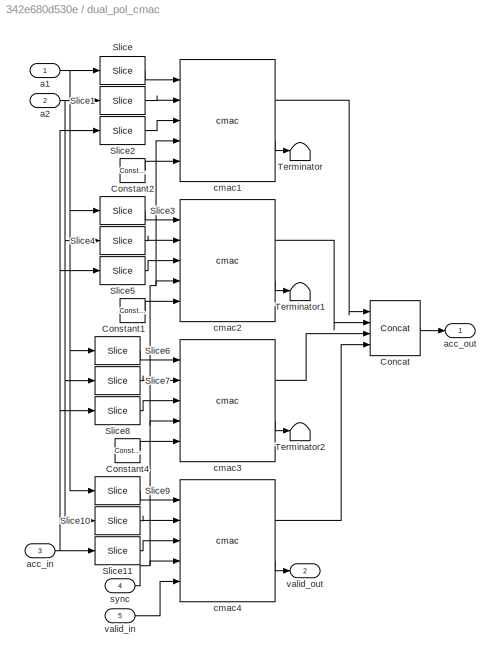
BLOCK [SubSystem] dual_pol_cmac
  FunctionWithSeparateData = off
  MaskHideContents = off
  MinAlgLoopOccurrences = off
  Opaque = off
  Ports = [5, 2]
  PropExecContextOutsideSubsystem = off
  RTWSystemCode = Auto
  RequestExecContextInheritance = off
BLOCK [Reference] dual_pol_cmac/Concat  REF=xbsIndex_r4/Concat
  Ports = [4, 1]
  SourceBlock = xbsIndex_r4/Concat
  SourceType = Xilinx Bus Concatenator Block
  block_type = concat
  block_version = 9.2.01
  dbl_ovrd = off
  has_advanced_control = 0
  infoedit = Concatenates two or more inputs.  Output will be cast to an unsigned value with the binary point at zero.
  num_inputs = 4
  sg_icon_stat = 50,55,4,1,white,blue,0,47d3d416,right,,[ ],[ ]
  sg_mask_display = fprintf('','COMMENT: begin icon graphics');\npatch([0 50 50 0 0 ],[0 0 55 55 0 ],[0.77 0.82 0.91 ]);\nplot([0 50 50 0 0 ],[0 0 55 55 0 ]);\npatch([9.425 19.54 26.54 33.54 40.54 26.54 16.425 9.425 ],[34.77 34.77 41.77 34.77 41.77 41.77 41.77 34.77 ],[1 1 1 ]);\npatch([16.425 26.54 19.54 9.425 16.425 ],[27.77 27.77 34.77 34.77 27.77 ],[0.931 0.946 0.973 ]);\npatch([9.425 19.54 26.54 16.425 9.425 ],[20.77...<+422ch>
  sggui_pos = -1,-1,-1,-1
BLOCK [Reference] dual_pol_cmac/Constant1  REF=xbsIndex_r4/Constant
  Ports = [0, 1]
  SourceBlock = xbsIndex_r4/Constant
  SourceType = Xilinx Constant Block Block
  arith_type = Unsigned
  bin_pt = 0
  block_type = constant
  block_version = 9.2.01
  carry = CIN
  const = 0
  dbl_ovrd = off
  dsp48_infoedit = The use of this block for DSP48 instructions is deprecated.  Please use the Opmode block.
  equ = P=C
  exp_width = 8
  explicit_period = off
  frac_width = 24
  gui_display_data_type = Fixed-point
  has_advanced_control = 0
  inp1 = P
  inp2 = PCIN>>17
  n_bits = 1
  opr = +
  opselect = C
  period = 1
  preci_type = Single
  sg_icon_stat = 25,24,0,1,white,blue,0,bf4ddd8b,right,,[ ],[ ]
  sggui_pos = -1,-1,-1,-1
BLOCK [Reference] dual_pol_cmac/Constant2  REF=xbsIndex_r4/Constant
  Ports = [0, 1]
  SourceBlock = xbsIndex_r4/Constant
  SourceType = Xilinx Constant Block Block
  arith_type = Unsigned
  bin_pt = 0
  block_type = constant
  block_version = 9.2.01
  carry = CIN
  const = 0
  dbl_ovrd = off
  dsp48_infoedit = The use of this block for DSP48 instructions is deprecated.  Please use the Opmode block.
  equ = P=C
  exp_width = 8
  explicit_period = off
  frac_width = 24
  gui_display_data_type = Fixed-point
  has_advanced_control = 0
  inp1 = P
  inp2 = PCIN>>17
  n_bits = 1
  opr = +
  opselect = C
  period = 1
  preci_type = Single
  sg_icon_stat = 25,24,0,1,white,blue,0,bf4ddd8b,right,,[ ],[ ]
  sggui_pos = -1,-1,-1,-1
BLOCK [Reference] dual_pol_cmac/Constant4  REF=xbsIndex_r4/Constant
  Ports = [0, 1]
  SourceBlock = xbsIndex_r4/Constant
  SourceType = Xilinx Constant Block Block
  arith_type = Unsigned
  bin_pt = 0
  block_type = constant
  block_version = 9.2.01
  carry = CIN
  const = 0
  dbl_ovrd = off
  dsp48_infoedit = The use of this block for DSP48 instructions is deprecated.  Please use the Opmode block.
  equ = P=C
  exp_width = 8
  explicit_period = off
  frac_width = 24
  gui_display_data_type = Fixed-point
  has_advanced_control = 0
  inp1 = P
  inp2 = PCIN>>17
  n_bits = 1
  opr = +
  opselect = C
  period = 1
  preci_type = Single
  sg_icon_stat = 25,24,0,1,white,blue,0,bf4ddd8b,right,,[ ],[ ]
  sggui_pos = -1,-1,-1,-1
BLOCK [Reference] dual_pol_cmac/Slice  REF=xbsIndex_r4/Slice
  Ports = [1, 1]
  SourceBlock = xbsIndex_r4/Slice
  SourceType = Xilinx Bit Slice Extractor Block
  base0 = LSB of Input
  base1 = MSB of Input
  bit0 = 0
  bit1 = 0
  block_type = slice
  block_version = 9.2.01
  boolean_output = off
  dbl_ovrd = off
  has_advanced_control = 0
  mode = Upper Bit Location + Width
  nbits = 2*n_bits
  sg_icon_stat = 45,28,1,1,white,blue,0,1fd851a7,right,,[ ],[ ]
  sggui_pos = -1,-1,-1,-1
BLOCK [Reference] dual_pol_cmac/Slice1  REF=xbsIndex_r4/Slice
  Ports = [1, 1]
  SourceBlock = xbsIndex_r4/Slice
  SourceType = Xilinx Bit Slice Extractor Block
  base0 = LSB of Input
  base1 = MSB of Input
  bit0 = 0
  bit1 = 0
  block_type = slice
  block_version = 9.2.01
  boolean_output = off
  dbl_ovrd = off
  has_advanced_control = 0
  mode = Upper Bit Location + Width
  nbits = 2*n_bits
  sg_icon_stat = 45,28,1,1,white,blue,0,1fd851a7,right,,[ ],[ ]
  sggui_pos = 1700,223,594,505
BLOCK [Reference] dual_pol_cmac/Slice10  REF=xbsIndex_r4/Slice
  Ports = [1, 1]
  SourceBlock = xbsIndex_r4/Slice
  SourceType = Xilinx Bit Slice Extractor Block
  base0 = LSB of Input
  base1 = MSB of Input
  bit0 = 0
  bit1 = 0
  block_type = slice
  block_version = 9.2.01
  boolean_output = off
  dbl_ovrd = off
  has_advanced_control = 0
  mode = Upper Bit Location + Width
  nbits = 2*n_bits
  sg_icon_stat = 45,28,1,1,white,blue,0,1fd851a7,right,,[ ],[ ]
  sggui_pos = 24,282,543,482
BLOCK [Reference] dual_pol_cmac/Slice11  REF=xbsIndex_r4/Slice
  Ports = [1, 1]
  SourceBlock = xbsIndex_r4/Slice
  SourceType = Xilinx Bit Slice Extractor Block
  base0 = LSB of Input
  base1 = MSB of Input
  bit0 = 0
  bit1 = -6*n_bits_out
  block_type = slice
  block_version = 9.2.01
  boolean_output = off
  dbl_ovrd = off
  has_advanced_control = 0
  mode = Upper Bit Location + Width
  nbits = 2*n_bits_out
  sg_icon_stat = 45,28,1,1,white,blue,0,1fd851a7,right,,[ ],[ ]
  sggui_pos = 22,228,543,482
BLOCK [Reference] dual_pol_cmac/Slice2  REF=xbsIndex_r4/Slice
  Ports = [1, 1]
  SourceBlock = xbsIndex_r4/Slice
  SourceType = Xilinx Bit Slice Extractor Block
  base0 = LSB of Input
  base1 = MSB of Input
  bit0 = 0
  bit1 = 0
  block_type = slice
  block_version = 9.2.01
  boolean_output = off
  dbl_ovrd = off
  has_advanced_control = 0
  mode = Upper Bit Location + Width
  nbits = 2*n_bits_out
  sg_icon_stat = 45,28,1,1,white,blue,0,1fd851a7,right,,[ ],[ ]
  sggui_pos = 21,201,543,482
BLOCK [Reference] dual_pol_cmac/Slice3  REF=xbsIndex_r4/Slice
  Ports = [1, 1]
  SourceBlock = xbsIndex_r4/Slice
  SourceType = Xilinx Bit Slice Extractor Block
  base0 = LSB of Input
  base1 = MSB of Input
  bit0 = 0
  bit1 = -2*n_bits
  block_type = slice
  block_version = 9.2.01
  boolean_output = off
  dbl_ovrd = off
  has_advanced_control = 0
  mode = Upper Bit Location + Width
  nbits = 2*n_bits
  sg_icon_stat = 45,28,1,1,white,blue,0,1fd851a7,right,,[ ],[ ]
  sggui_pos = -1,-1,-1,-1
BLOCK [Reference] dual_pol_cmac/Slice4  REF=xbsIndex_r4/Slice
  Ports = [1, 1]
  SourceBlock = xbsIndex_r4/Slice
  SourceType = Xilinx Bit Slice Extractor Block
  base0 = LSB of Input
  base1 = MSB of Input
  bit0 = 0
  bit1 = -2*n_bits
  block_type = slice
  block_version = 9.2.01
  boolean_output = off
  dbl_ovrd = off
  has_advanced_control = 0
  mode = Upper Bit Location + Width
  nbits = 2*n_bits
  sg_icon_stat = 45,28,1,1,white,blue,0,1fd851a7,right,,[ ],[ ]
  sggui_pos = 21,201,543,482
BLOCK [Reference] dual_pol_cmac/Slice5  REF=xbsIndex_r4/Slice
  Ports = [1, 1]
  SourceBlock = xbsIndex_r4/Slice
  SourceType = Xilinx Bit Slice Extractor Block
  base0 = LSB of Input
  base1 = MSB of Input
  bit0 = 0
  bit1 = -2*n_bits_out
  block_type = slice
  block_version = 9.2.01
  boolean_output = off
  dbl_ovrd = off
  has_advanced_control = 0
  mode = Upper Bit Location + Width
  nbits = 2*n_bits_out
  sg_icon_stat = 45,28,1,1,white,blue,0,1fd851a7,right,,[ ],[ ]
  sggui_pos = 21,201,543,482
BLOCK [Reference] dual_pol_cmac/Slice6  REF=xbsIndex_r4/Slice
  Ports = [1, 1]
  SourceBlock = xbsIndex_r4/Slice
  SourceType = Xilinx Bit Slice Extractor Block
  base0 = LSB of Input
  base1 = MSB of Input
  bit0 = 0
  bit1 = 0
  block_type = slice
  block_version = 9.2.01
  boolean_output = off
  dbl_ovrd = off
  has_advanced_control = 0
  mode = Upper Bit Location + Width
  nbits = 2*n_bits
  sg_icon_stat = 45,28,1,1,white,blue,0,1fd851a7,right,,[ ],[ ]
  sggui_pos = 22,228,543,482
BLOCK [Reference] dual_pol_cmac/Slice7  REF=xbsIndex_r4/Slice
  Ports = [1, 1]
  SourceBlock = xbsIndex_r4/Slice
  SourceType = Xilinx Bit Slice Extractor Block
  base0 = LSB of Input
  base1 = MSB of Input
  bit0 = 0
  bit1 = -2*n_bits
  block_type = slice
  block_version = 9.2.01
  boolean_output = off
  dbl_ovrd = off
  has_advanced_control = 0
  mode = Upper Bit Location + Width
  nbits = 2*n_bits
  sg_icon_stat = 45,28,1,1,white,blue,0,1fd851a7,right,,[ ],[ ]
  sggui_pos = 21,201,543,482
BLOCK [Reference] dual_pol_cmac/Slice8  REF=xbsIndex_r4/Slice
  Ports = [1, 1]
  SourceBlock = xbsIndex_r4/Slice
  SourceType = Xilinx Bit Slice Extractor Block
  base0 = LSB of Input
  base1 = MSB of Input
  bit0 = 0
  bit1 = -4*n_bits_out
  block_type = slice
  block_version = 9.2.01
  boolean_output = off
  dbl_ovrd = off
  has_advanced_control = 0
  mode = Upper Bit Location + Width
  nbits = 2*n_bits_out
  sg_icon_stat = 45,28,1,1,white,blue,0,1fd851a7,right,,[ ],[ ]
  sggui_pos = 21,201,543,482
BLOCK [Reference] dual_pol_cmac/Slice9  REF=xbsIndex_r4/Slice
  Ports = [1, 1]
  SourceBlock = xbsIndex_r4/Slice
  SourceType = Xilinx Bit Slice Extractor Block
  base0 = LSB of Input
  base1 = MSB of Input
  bit0 = 0
  bit1 = -2*n_bits
  block_type = slice
  block_version = 9.2.01
  boolean_output = off
  dbl_ovrd = off
  has_advanced_control = 0
  mode = Upper Bit Location + Width
  nbits = 2*n_bits
  sg_icon_stat = 45,28,1,1,white,blue,0,1fd851a7,right,,[ ],[ ]
  sggui_pos = 26,336,543,482
BLOCK [Terminator] dual_pol_cmac/Terminator
BLOCK [Terminator] dual_pol_cmac/Terminator1
BLOCK [Terminator] dual_pol_cmac/Terminator2
BLOCK [Inport] dual_pol_cmac/a1
  IconDisplay = Port number
BLOCK [Inport] dual_pol_cmac/a2
  IconDisplay = Port number
  Port = 2
BLOCK [Inport] dual_pol_cmac/acc_in
  IconDisplay = Port number
  Port = 3
BLOCK [Outport] dual_pol_cmac/acc_out
  IconDisplay = Port number
BLOCK [Reference] dual_pol_cmac/cmac1  REF=casper_library_correlator/cmac  (lib defined in mdl_684b82400ae9, mdl_7521b25f5715, +6 more)
  Ports = [5, 2]
  SourceBlock = casper_library_correlator/cmac
  SourceType = cmac
  Tag = cmac
  acc_len = 256
  add_latency = 1
  bin_pt_a = 7
  bin_pt_b = 7
  conv_latency = 0
  in_latency = 0
  mult_latency = 2
  multiplier_implementation = behavioral HDL
  n_bits_a = 8
  n_bits_b = 8
  overflow = Wrap
  quantization = Truncate
BLOCK [Reference] dual_pol_cmac/cmac2  REF=casper_library_correlator/cmac  (lib defined in mdl_684b82400ae9, mdl_7521b25f5715, +6 more)
  Ports = [5, 2]
  SourceBlock = casper_library_correlator/cmac
  SourceType = cmac
  Tag = cmac
  acc_len = 256
  add_latency = 1
  bin_pt_a = 7
  bin_pt_b = 7
  conv_latency = 0
  in_latency = 0
  mult_latency = 2
  multiplier_implementation = behavioral HDL
  n_bits_a = 8
  n_bits_b = 8
  overflow = Wrap
  quantization = Truncate
BLOCK [Reference] dual_pol_cmac/cmac3  REF=casper_library_correlator/cmac  (lib defined in mdl_684b82400ae9, mdl_7521b25f5715, +6 more)
  Ports = [5, 2]
  SourceBlock = casper_library_correlator/cmac
  SourceType = cmac
  Tag = cmac
  acc_len = 256
  add_latency = 1
  bin_pt_a = 7
  bin_pt_b = 7
  conv_latency = 0
  in_latency = 0
  mult_latency = 2
  multiplier_implementation = behavioral HDL
  n_bits_a = 8
  n_bits_b = 8
  overflow = Wrap
  quantization = Truncate
BLOCK [Reference] dual_pol_cmac/cmac4  REF=casper_library_correlator/cmac  (lib defined in mdl_684b82400ae9, mdl_7521b25f5715, +6 more)
  Ports = [5, 2]
  SourceBlock = casper_library_correlator/cmac
  SourceType = cmac
  Tag = cmac
  acc_len = 256
  add_latency = 1
  bin_pt_a = 7
  bin_pt_b = 7
  conv_latency = 0
  in_latency = 0
  mult_latency = 2
  multiplier_implementation = behavioral HDL
  n_bits_a = 8
  n_bits_b = 8
  overflow = Wrap
  quantization = Truncate
BLOCK [Inport] dual_pol_cmac/sync
  IconDisplay = Port number
  Port = 4
BLOCK [Inport] dual_pol_cmac/valid_in
  IconDisplay = Port number
  Port = 5
BLOCK [Outport] dual_pol_cmac/valid_out
  IconDisplay = Port number
  Port = 2
LINE cmac/Constant1:1 -> cmac/Relational:2
LINE cmac/Constant2:1 -> cmac/acc:4
LINE cmac/Counter:1 -> cmac/Relational:1
LINE cmac/Delay:1 -> cmac/Counter:1
NET cmac/Relational:1 -> cmac/acc1:1, cmac/acc:1
LINE cmac/a+bi:1 -> cmac/cmult*:1
LINE cmac/acc/Accumulator:1 -> cmac/acc/Mux2:3
LINE cmac/acc/Constant:1 -> cmac/acc/Mux3:3
LINE cmac/acc/Convert1:1 -> cmac/acc/Accumulator:1
LINE cmac/acc/Convert2:1 -> cmac/acc/Mux3:2
NET cmac/acc/Delay1:1 -> cmac/acc/Accumulator:2, cmac/acc/Delay:1
NET cmac/acc/Delay:1 -> cmac/acc/Mux2:1, cmac/acc/Mux3:1
LINE cmac/acc/Mux2:1 -> cmac/acc/acc_out:1
LINE cmac/acc/Mux3:1 -> cmac/acc/valid_out:1
LINE cmac/acc/acc_in:1 -> cmac/acc/Mux2:2
LINE cmac/acc/din:1 -> cmac/acc/Convert1:1
LINE cmac/acc/rst:1 -> cmac/acc/Delay1:1
LINE cmac/acc/valid_in:1 -> cmac/acc/Convert2:1
LINE cmac/acc1/Accumulator:1 -> cmac/acc1/Mux2:3
LINE cmac/acc1/Constant:1 -> cmac/acc1/Mux3:3
LINE cmac/acc1/Convert1:1 -> cmac/acc1/Accumulator:1
LINE cmac/acc1/Convert2:1 -> cmac/acc1/Mux3:2
NET cmac/acc1/Delay1:1 -> cmac/acc1/Accumulator:2, cmac/acc1/Delay:1
NET cmac/acc1/Delay:1 -> cmac/acc1/Mux2:1, cmac/acc1/Mux3:1
LINE cmac/acc1/Mux2:1 -> cmac/acc1/acc_out:1
LINE cmac/acc1/Mux3:1 -> cmac/acc1/valid_out:1
LINE cmac/acc1/acc_in:1 -> cmac/acc1/Mux2:2
LINE cmac/acc1/din:1 -> cmac/acc1/Convert1:1
LINE cmac/acc1/rst:1 -> cmac/acc1/Delay1:1
LINE cmac/acc1/valid_in:1 -> cmac/acc1/Convert2:1
LINE cmac/acc1:1 -> cmac/ri_to_c:2
LINE cmac/acc1:2 -> cmac/valid_out:1
LINE cmac/acc:1 -> cmac/ri_to_c:1
LINE cmac/acc:2 -> cmac/Terminator:1
LINE cmac/acc_in:1 -> cmac/c_to_ri2:1
LINE cmac/c+di:1 -> cmac/cmult*:2
NET cmac/c_to_ri1/In1:1 -> cmac/c_to_ri1/Slice1:1, cmac/c_to_ri1/Slice:1
LINE cmac/c_to_ri1/Reinterpret1:1 -> cmac/c_to_ri1/Out2:1
LINE cmac/c_to_ri1/Reinterpret:1 -> cmac/c_to_ri1/Out1:1
LINE cmac/c_to_ri1/Slice1:1 -> cmac/c_to_ri1/Reinterpret1:1
LINE cmac/c_to_ri1/Slice:1 -> cmac/c_to_ri1/Reinterpret:1
LINE cmac/c_to_ri1:1 -> cmac/acc:2
LINE cmac/c_to_ri1:2 -> cmac/acc1:2
NET cmac/c_to_ri2/In1:1 -> cmac/c_to_ri2/Slice1:1, cmac/c_to_ri2/Slice:1
LINE cmac/c_to_ri2/Reinterpret1:1 -> cmac/c_to_ri2/Out2:1
LINE cmac/c_to_ri2/Reinterpret:1 -> cmac/c_to_ri2/Out1:1
LINE cmac/c_to_ri2/Slice1:1 -> cmac/c_to_ri2/Reinterpret1:1
LINE cmac/c_to_ri2/Slice:1 -> cmac/c_to_ri2/Reinterpret:1
LINE cmac/c_to_ri2:1 -> cmac/acc:3
LINE cmac/c_to_ri2:2 -> cmac/acc1:3
LINE cmac/cmult*:1 -> cmac/c_to_ri1:1
LINE cmac/ri_to_c/Concat:1 -> cmac/ri_to_c/Out1:1
LINE cmac/ri_to_c/In1:1 -> cmac/ri_to_c/Reinterpret:1
LINE cmac/ri_to_c/In2:1 -> cmac/ri_to_c/Reinterpret1:1
LINE cmac/ri_to_c/Reinterpret1:1 -> cmac/ri_to_c/Concat:2
LINE cmac/ri_to_c/Reinterpret:1 -> cmac/ri_to_c/Concat:1
LINE cmac/ri_to_c:1 -> cmac/acc_out:1
LINE cmac/sync:1 -> cmac/Delay:1
LINE cmac/valid_in:1 -> cmac/acc1:4
LINE dual_pol_cmac/Concat:1 -> dual_pol_cmac/acc_out:1
LINE dual_pol_cmac/Constant1:1 -> dual_pol_cmac/cmac2:5
LINE dual_pol_cmac/Constant2:1 -> dual_pol_cmac/cmac1:5
LINE dual_pol_cmac/Constant4:1 -> dual_pol_cmac/cmac3:5
LINE dual_pol_cmac/Slice10:1 -> dual_pol_cmac/cmac4:2
LINE dual_pol_cmac/Slice11:1 -> dual_pol_cmac/cmac4:3
LINE dual_pol_cmac/Slice1:1 -> dual_pol_cmac/cmac1:2
LINE dual_pol_cmac/Slice2:1 -> dual_pol_cmac/cmac1:3
LINE dual_pol_cmac/Slice3:1 -> dual_pol_cmac/cmac2:1
LINE dual_pol_cmac/Slice4:1 -> dual_pol_cmac/cmac2:2
LINE dual_pol_cmac/Slice5:1 -> dual_pol_cmac/cmac2:3
LINE dual_pol_cmac/Slice6:1 -> dual_pol_cmac/cmac3:1
LINE dual_pol_cmac/Slice7:1 -> dual_pol_cmac/cmac3:2
LINE dual_pol_cmac/Slice8:1 -> dual_pol_cmac/cmac3:3
LINE dual_pol_cmac/Slice9:1 -> dual_pol_cmac/cmac4:1
LINE dual_pol_cmac/Slice:1 -> dual_pol_cmac/cmac1:1
NET dual_pol_cmac/a1:1 -> dual_pol_cmac/Slice3:1, dual_pol_cmac/Slice6:1, dual_pol_cmac/Slice9:1, dual_pol_cmac/Slice:1
NET dual_pol_cmac/a2:1 -> dual_pol_cmac/Slice10:1, dual_pol_cmac/Slice1:1, dual_pol_cmac/Slice4:1, dual_pol_cmac/Slice7:1
NET dual_pol_cmac/acc_in:1 -> dual_pol_cmac/Slice11:1, dual_pol_cmac/Slice2:1, dual_pol_cmac/Slice5:1, dual_pol_cmac/Slice8:1
LINE dual_pol_cmac/cmac1:1 -> dual_pol_cmac/Concat:1
LINE dual_pol_cmac/cmac1:2 -> dual_pol_cmac/Terminator:1
LINE dual_pol_cmac/cmac2:1 -> dual_pol_cmac/Concat:2
LINE dual_pol_cmac/cmac2:2 -> dual_pol_cmac/Terminator1:1
LINE dual_pol_cmac/cmac3:1 -> dual_pol_cmac/Concat:3
LINE dual_pol_cmac/cmac3:2 -> dual_pol_cmac/Terminator2:1
LINE dual_pol_cmac/cmac4:1 -> dual_pol_cmac/Concat:4
LINE dual_pol_cmac/cmac4:2 -> dual_pol_cmac/valid_out:1
NET dual_pol_cmac/sync:1 -> dual_pol_cmac/cmac1:4, dual_pol_cmac/cmac2:4, dual_pol_cmac/cmac3:4, dual_pol_cmac/cmac4:4
LINE dual_pol_cmac/valid_in:1 -> dual_pol_cmac/cmac4:5
note: NET lines group one-source signal fan-out (src -> all destinations, sorted); 1:1 wires keep LINE
